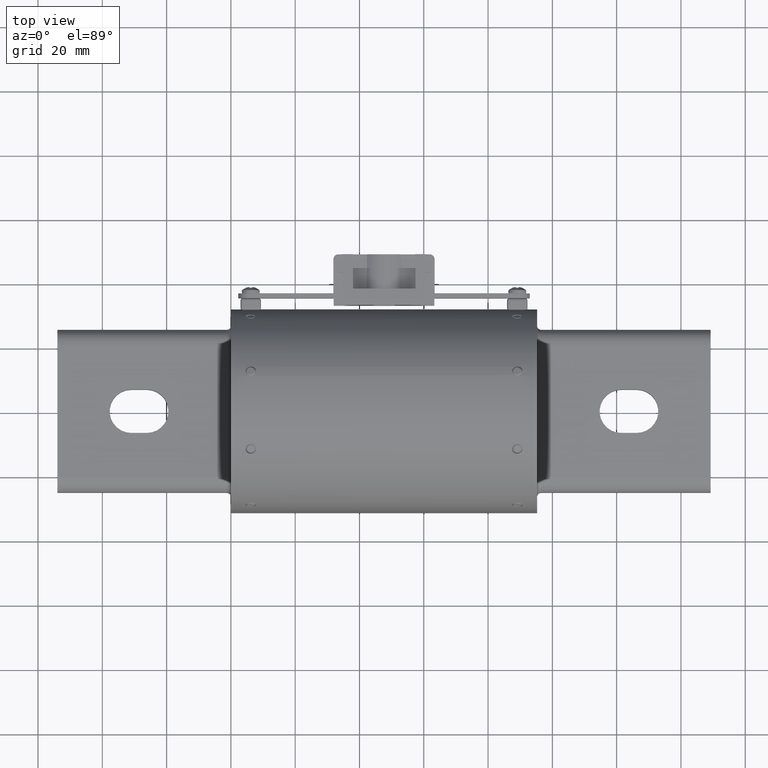
[diagram: clean part render]
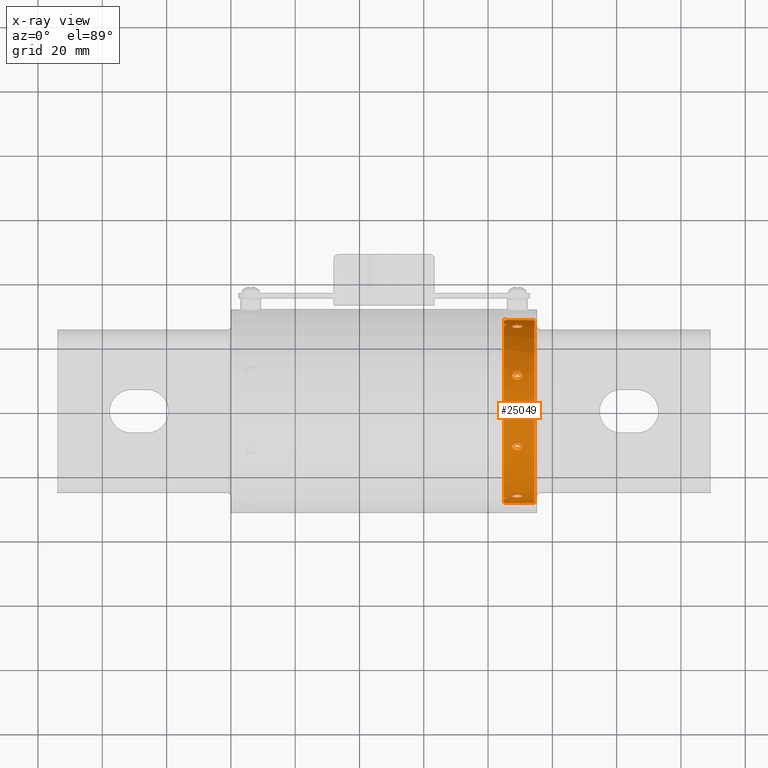
[diagram: x-ray — body ghosted, one internal face saturated and labeled with its STEP entity id]
A machine part, top view, then the same camera in x-ray: the body is ghosted and one INTERNAL B-rep face — a face not visible from any outside direction — is saturated and labeled: STEP entity #25049.
In plain terms, the highlighted cylindrical surface (bore or boss wall) has radius 28.5369 mm, axis along (1, 0, -0).
Its self-contained STEP definition (entity closure, byte-faithful):
#124 = CARTESIAN_POINT ( 'NONE',  ( 3.538933890152487400, -0.3780859924706288500, 1.057976023356261200 ) ) ;
#198 = CARTESIAN_POINT ( 'NONE',  ( 3.570130744637820500, 0.4376802129042148800, 1.034748656506844700 ) ) ;
#253 = DIRECTION ( 'NONE',  ( 0.0000000000000000000, -1.000000000000000000, 0.0000000000000000000 ) ) ;
#283 = FACE_BOUND ( 'NONE', #53560, .T. ) ;
#568 = CARTESIAN_POINT ( 'NONE',  ( 3.562185924736811900, -0.4591410192108847900, 1.025404170118422900 ) ) ;
#576 = CARTESIAN_POINT ( 'NONE',  ( 3.507000000000000100, 1.011997275087258100, 0.4879690207542929400 ) ) ;
#714 = LINE ( 'NONE', #137690, #99062 ) ;
#729 = CARTESIAN_POINT ( 'NONE',  ( 3.445124254700535600, -1.031501727180094600, -0.4453256485310201400 ) ) ;
#1094 = AXIS2_PLACEMENT_3D ( 'NONE', #117004, #51979, #127886 ) ;
#1154 = CARTESIAN_POINT ( 'NONE',  ( 3.341999999999999600, -2.013075239704277900E-016, -6.169712846355143400E-014 ) ) ;
#1178 = CARTESIAN_POINT ( 'NONE',  ( 3.478813608424086800, -1.058492704347473000, -0.3766271349764672700 ) ) ;
#1654 = CARTESIAN_POINT ( 'NONE',  ( 3.567280512138974600, -1.045674119634019100, -0.4108925138497548400 ) ) ;
#2115 = CARTESIAN_POINT ( 'NONE',  ( 3.515398636585917600, -1.011997275087308500, -0.4879690207543140900 ) ) ;
#2823 = ORIENTED_EDGE ( 'NONE', *, *, #41876, .T. ) ;
#3029 = CARTESIAN_POINT ( 'NONE',  ( 3.445124254700535200, -0.4144890801821029500, -1.044274652007296300 ) ) ;
#3275 = CARTESIAN_POINT ( 'NONE',  ( 3.464989712413194300, 0.4737761002720601300, -1.018723250887035900 ) ) ;
#3400 = VERTEX_POINT ( 'NONE', #22996 ) ;
#3491 = CARTESIAN_POINT ( 'NONE',  ( 3.478813608424085900, -0.4821517679598689200, -1.014782970201343300 ) ) ;
#3661 = VERTEX_POINT ( 'NONE', #49646 ) ;
#3726 = CARTESIAN_POINT ( 'NONE',  ( 3.465006043216689600, 0.3853183110074838200, -1.055362908834385400 ) ) ;
#3881 = EDGE_CURVE ( 'NONE', #53114, #137507, #88645, .T. ) ;
#3928 = CARTESIAN_POINT ( 'NONE',  ( 3.567280512138975500, -0.4488583780225431900, -1.029948143786472100 ) ) ;
#4181 = CARTESIAN_POINT ( 'NONE',  ( 3.557510918191218300, 0.3938550066222547000, -1.052208356780799200 ) ) ;
#4255 = DIRECTION ( 'NONE',  ( -1.000000000000000000, -6.718675002655119100E-017, 1.023891520009880200E-016 ) ) ;
#4402 = CARTESIAN_POINT ( 'NONE',  ( 3.515398636585915300, -0.3705439321722116500, -1.060636339340910800 ) ) ;
#4647 = EDGE_CURVE ( 'NONE', #101786, #131056, #66209, .T. ) ;
#4662 = CARTESIAN_POINT ( 'NONE',  ( 3.546112164216570500, 0.4764172399858244700, -1.017503498640856400 ) ) ;
#4813 = LINE ( 'NONE', #90048, #116822 ) ;
#5136 = CARTESIAN_POINT ( 'NONE',  ( 3.341999999999997900, -2.013075239704280900E-016, -6.169712846355143400E-014 ) ) ;
#5363 = VERTEX_POINT ( 'NONE', #79169 ) ;
#5579 = CARTESIAN_POINT ( 'NONE',  ( 3.502800681707041600, 1.011997275087257900, 0.4879690207542929400 ) ) ;
#5742 = EDGE_CURVE ( 'NONE', #85133, #95730, #50244, .T. ) ;
#6047 = DIRECTION ( 'NONE',  ( 0.0000000000000000000, -1.000000000000000000, 0.0000000000000000000 ) ) ;
#6048 = CARTESIAN_POINT ( 'NONE',  ( 3.443860352378937500, 1.041141677913381300, 0.4222474021840023600 ) ) ;
#6248 = CARTESIAN_POINT ( 'NONE',  ( 3.312000000000000300, -2.033231264712243800E-016, -6.169405678899142900E-014 ) ) ;
#6260 = LINE ( 'NONE', #63895, #92765 ) ;
#6278 = CARTESIAN_POINT ( 'NONE',  ( 3.445124254700534700, 1.044274652007265400, -0.4144890801820863600 ) ) ;
#6405 = LINE ( 'NONE', #77883, #89517 ) ;
#6536 = CARTESIAN_POINT ( 'NONE',  ( 3.498617316963510900, 1.060498256524868000, 0.3709398361550404500 ) ) ;
#6672 = CIRCLE ( 'NONE', #19122, 1.123499999999999900 ) ;
#6769 = CARTESIAN_POINT ( 'NONE',  ( 3.478813608424087300, 1.014782970201317400, -0.4821517679598543700 ) ) ;
#7013 = CARTESIAN_POINT ( 'NONE',  ( 3.570545773309508100, 1.039607306907323100, 0.4260122974539519200 ) ) ;
#7231 = CARTESIAN_POINT ( 'NONE',  ( 3.567280512138973700, 1.029948143786443900, -0.4488583780225275900 ) ) ;
#7355 = LINE ( 'NONE', #38040, #65064 ) ;
#7440 = DIRECTION ( 'NONE',  ( 1.000000000000000000, 6.718675002655119100E-017, -1.023891520009880200E-016 ) ) ;
#7697 = CARTESIAN_POINT ( 'NONE',  ( 3.515398636585915800, 1.060636339340875300, -0.3705439321721935600 ) ) ;
#8346 = CARTESIAN_POINT ( 'NONE',  ( 3.507000000000000600, -1.060636339340836200, 0.3705439321721851800 ) ) ;
#8830 = CARTESIAN_POINT ( 'NONE',  ( 3.443860352378938000, -1.034772342051205600, 0.4376243392057746500 ) ) ;
#9076 = ORIENTED_EDGE ( 'NONE', *, *, #112728, .T. ) ;
#9201 = CARTESIAN_POINT ( 'NONE',  ( 3.502800681707041200, 0.3705439321721742400, 1.060636339340799400 ) ) ;
#9240 = EDGE_CURVE ( 'NONE', #79636, #63903, #43109, .T. ) ;
#9263 = CARTESIAN_POINT ( 'NONE',  ( 3.498617316963510400, -1.012179582182697800, 0.4875914350677806900 ) ) ;
#9341 = CARTESIAN_POINT ( 'NONE',  ( 3.312000000000000300, -1.067098870770651700, 0.3514999999999382500 ) ) ;
#9670 = CARTESIAN_POINT ( 'NONE',  ( 3.498671704664812100, 0.3709337140410062200, 1.060500393019303800 ) ) ;
#9730 = CARTESIAN_POINT ( 'NONE',  ( 3.570545773309506700, -1.036349560883804500, 0.4338771920866966700 ) ) ;
#9903 = ORIENTED_EDGE ( 'NONE', *, *, #126633, .F. ) ;
#10058 = CARTESIAN_POINT ( 'NONE',  ( 3.468259527513521100, -0.4762099404755517600, 1.017586198434734300 ) ) ;
#10144 = CARTESIAN_POINT ( 'NONE',  ( 3.445481639365505000, 0.4451205531266922400, 1.031569946888499800 ) ) ;
#10450 = DIRECTION ( 'NONE',  ( 0.0000000000000000000, -1.000000000000000000, 0.0000000000000000000 ) ) ;
#10460 = ORIENTED_EDGE ( 'NONE', *, *, #5742, .T. ) ;
#10519 = CARTESIAN_POINT ( 'NONE',  ( 3.459076836950700300, -0.3908924028818050500, 1.053311064932892700 ) ) ;
#10602 = CARTESIAN_POINT ( 'NONE',  ( 3.502829609732191600, 0.4879676775122326300, 1.011997922777218000 ) ) ;
#10647 = CARTESIAN_POINT ( 'NONE',  ( 3.341999999999999600, -2.013075239704277900E-016, -6.169712846355143400E-014 ) ) ;
#10691 = VERTEX_POINT ( 'NONE', #54808 ) ;
#10993 = CARTESIAN_POINT ( 'NONE',  ( 3.554825497809417800, -0.3907927216730329700, 1.053347937870924100 ) ) ;
#11070 = CARTESIAN_POINT ( 'NONE',  ( 3.570558357964457300, 0.4222563447484242700, 1.041163843949715700 ) ) ;
#11150 = CARTESIAN_POINT ( 'NONE',  ( 3.507000000000001000, -1.011997275087308100, -0.4879690207543140300 ) ) ;
#11307 = VECTOR ( 'NONE', #50868, 39.37007874015748100 ) ;
#11468 = CARTESIAN_POINT ( 'NONE',  ( 3.554902444777622500, -0.4684179153135313900, 1.021198087145041200 ) ) ;
#11624 = CARTESIAN_POINT ( 'NONE',  ( 3.443447787477609300, -1.039552099363065600, -0.4261465320336750300 ) ) ;
#12079 = DIRECTION ( 'NONE',  ( 0.0000000000000000000, -1.000000000000000000, 1.776356839400250500E-014 ) ) ;
#12108 = CARTESIAN_POINT ( 'NONE',  ( 3.490474287082780100, -1.059959007490082600, -0.3724779410646298400 ) ) ;
#12565 = CARTESIAN_POINT ( 'NONE',  ( 3.570130744637820100, -1.041164438375476300, -0.4221911453039460800 ) ) ;
#12945 = ORIENTED_EDGE ( 'NONE', *, *, #28093, .T. ) ;
#13031 = ORIENTED_EDGE ( 'NONE', *, *, #56421, .T. ) ;
#13374 = VERTEX_POINT ( 'NONE', #18171 ) ;
#13508 = CARTESIAN_POINT ( 'NONE',  ( 3.506999999999999700, -0.3705439321722117700, -1.060636339340910400 ) ) ;
#13680 = CARTESIAN_POINT ( 'NONE',  ( 3.370000000000000600, -1.118905715420204700, 0.1014999999999382200 ) ) ;
#13711 = DIRECTION ( 'NONE',  ( 1.000000000000000000, 6.718675002655119100E-017, -1.023891520009880200E-016 ) ) ;
#13745 = CARTESIAN_POINT ( 'NONE',  ( 3.369999999999999700, 1.067098870770651500, 0.3514999999999382500 ) ) ;
#13943 = CARTESIAN_POINT ( 'NONE',  ( 3.443447787477609700, -0.4337432362761974900, -1.036405441436512000 ) ) ;
#14122 = CARTESIAN_POINT ( 'NONE',  ( 3.370000000000000600, -1.994262949696842900E-016, -6.169999535980749800E-014 ) ) ;
#14172 = VERTEX_POINT ( 'NONE', #72818 ) ;
#14200 = CARTESIAN_POINT ( 'NONE',  ( 3.451463584181008400, 0.4593277463716344800, -1.025343243908262100 ) ) ;
#14337 = CARTESIAN_POINT ( 'NONE',  ( 3.369999999999999700, 1.113642671596234900, 0.1484999999999382400 ) ) ;
#14410 = CARTESIAN_POINT ( 'NONE',  ( 3.490474287082780100, -0.4861225240068013900, -1.012885879945238900 ) ) ;
#14664 = CARTESIAN_POINT ( 'NONE',  ( 3.475100278259846600, 0.3785043543209995500, -1.057824188678174100 ) ) ;
#14875 = CARTESIAN_POINT ( 'NONE',  ( 3.570130744637820100, -0.4376802129042517400, -1.034748656506953000 ) ) ;
#15115 = CARTESIAN_POINT ( 'NONE',  ( 3.564086464560446200, 0.4037284856316468200, -1.048460935037547100 ) ) ;
#15583 = CARTESIAN_POINT ( 'NONE',  ( 3.523742135114874800, 0.4864467643023890900, -1.012734868241144300 ) ) ;
#16041 = DIRECTION ( 'NONE',  ( 0.0000000000000000000, -1.000000000000000000, 8.881784197001245400E-016 ) ) ;
#16506 = CARTESIAN_POINT ( 'NONE',  ( 3.490548628223676600, 1.012877562579337800, 0.4861398430799129300 ) ) ;
#16717 = CARTESIAN_POINT ( 'NONE',  ( 3.507000000000000600, 1.060636339340875800, -0.3705439321721936100 ) ) ;
#16973 = CARTESIAN_POINT ( 'NONE',  ( 3.446681240676625600, 1.045633120962374600, 0.4109968813290756400 ) ) ;
#17122 = AXIS2_PLACEMENT_3D ( 'NONE', #6248, #126183, #104856 ) ;
#17192 = CARTESIAN_POINT ( 'NONE',  ( 3.443447787477609300, 1.036405441436482300, -0.4337432362761809400 ) ) ;
#17215 = ORIENTED_EDGE ( 'NONE', *, *, #124518, .F. ) ;
#17233 = CARTESIAN_POINT ( 'NONE',  ( 3.341999999999999600, 1.113642671596234600, 0.1484999999999382400 ) ) ;
#17413 = CARTESIAN_POINT ( 'NONE',  ( 3.515272531201082200, 1.060637318964658500, 0.3705411281197561500 ) ) ;
#17626 = CARTESIAN_POINT ( 'NONE',  ( 3.490474287082779200, 1.012885879945213400, -0.4861225240067867900 ) ) ;
#17867 = CARTESIAN_POINT ( 'NONE',  ( 3.568914994152521600, 1.031547703078980100, 0.4452201812200558000 ) ) ;
#18075 = CIRCLE ( 'NONE', #110356, 1.123499999999999900 ) ;
#18101 = CARTESIAN_POINT ( 'NONE',  ( 3.570130744637820500, 1.034748656506923000, -0.4376802129042358700 ) ) ;
#18171 = CARTESIAN_POINT ( 'NONE',  ( 3.341999999999997900, 1.118905715420204400, 0.1014999999999382200 ) ) ;
#18809 = EDGE_CURVE ( 'NONE', #77737, #77737, #27238, .T. ) ;
#18907 = ORIENTED_EDGE ( 'NONE', *, *, #93701, .T. ) ;
#19122 = AXIS2_PLACEMENT_3D ( 'NONE', #135849, #71010, #6047 ) ;
#19176 = CARTESIAN_POINT ( 'NONE',  ( 3.490548628223677500, -1.059965372658330000, 0.3724598133647776300 ) ) ;
#19319 = CIRCLE ( 'NONE', #133550, 1.123499999999999900 ) ;
#19656 = CARTESIAN_POINT ( 'NONE',  ( 3.446681240676625600, -1.029992952300061700, 0.4487555886314303900 ) ) ;
#20015 = EDGE_CURVE ( 'NONE', #63903, #101786, #21039, .T. ) ;
#20150 = CARTESIAN_POINT ( 'NONE',  ( 3.515272531201081700, -1.011995985021419500, 0.4879716962174283100 ) ) ;
#20457 = CARTESIAN_POINT ( 'NONE',  ( 3.502800681707043400, -0.4879690207542858900, 1.011997275087229900 ) ) ;
#20549 = CARTESIAN_POINT ( 'NONE',  ( 3.486512396113935700, 0.3736146883634327000, 1.059559750911943400 ) ) ;
#20628 = CARTESIAN_POINT ( 'NONE',  ( 3.568914994152524200, -1.044232585226364100, 0.4145961667027441300 ) ) ;
#20930 = CARTESIAN_POINT ( 'NONE',  ( 3.456198068224821500, -0.4657868486416924000, 1.022413459408287700 ) ) ;
#21015 = CARTESIAN_POINT ( 'NONE',  ( 3.449862901852390100, 0.4558011675427998100, 1.026894520280582400 ) ) ;
#21039 = CIRCLE ( 'NONE', #116443, 1.123499999999999900 ) ;
#21054 = EDGE_CURVE ( 'NONE', #88555, #130035, #52329, .T. ) ;
#21384 = CARTESIAN_POINT ( 'NONE',  ( 3.468219715082657000, -0.3828405916234842700, 1.056262581841141500 ) ) ;
#21475 = CARTESIAN_POINT ( 'NONE',  ( 3.523634073543618200, 0.4864730878028527500, 1.012722182310031200 ) ) ;
#21522 = DIRECTION ( 'NONE',  ( 0.0000000000000000000, -1.000000000000000000, 0.0000000000000000000 ) ) ;
#21853 = CARTESIAN_POINT ( 'NONE',  ( 3.562131990603966800, -0.4003204544115813700, 1.049765557684291900 ) ) ;
#21940 = CARTESIAN_POINT ( 'NONE',  ( 3.564135572610033900, 0.4038202171233358800, 1.048425647395002700 ) ) ;
#22009 = CARTESIAN_POINT ( 'NONE',  ( 3.498671704664813900, -1.012176763924135500, -0.4875972747858722300 ) ) ;
#22263 = FACE_OUTER_BOUND ( 'NONE', #78372, .T. ) ;
#22308 = CARTESIAN_POINT ( 'NONE',  ( 3.539030487377321100, -0.4807044950438531000, 1.015473070197362400 ) ) ;
#22313 = CARTESIAN_POINT ( 'NONE',  ( 3.719999999999998400, -1.123499999999999900, -6.173583156300779100E-014 ) ) ;
#22370 = EDGE_CURVE ( 'NONE', #3400, #81115, #48215, .T. ) ;
#22460 = CARTESIAN_POINT ( 'NONE',  ( 3.445481639365503200, -1.044177866274570200, -0.4146823431517423500 ) ) ;
#22529 = VECTOR ( 'NONE', #127969, 39.37007874015748100 ) ;
#22633 = ORIENTED_EDGE ( 'NONE', *, *, #126190, .T. ) ;
#22911 = CARTESIAN_POINT ( 'NONE',  ( 3.502829609732190300, -1.060635847511291800, -0.3705453399737484400 ) ) ;
#22996 = CARTESIAN_POINT ( 'NONE',  ( 3.370000000000000600, -1.050452283542665300, -0.3985000000000616900 ) ) ;
#23316 = CARTESIAN_POINT ( 'NONE',  ( 3.341999999999997900, 1.118905715420204400, -0.1015000000000617800 ) ) ;
#23369 = CARTESIAN_POINT ( 'NONE',  ( 3.570558357964456900, -1.034794339153827700, -0.4376336896124702300 ) ) ;
#24108 = ORIENTED_EDGE ( 'NONE', *, *, #128500, .T. ) ;
#24294 = CARTESIAN_POINT ( 'NONE',  ( 3.498671704664812100, -0.3709337140410436900, -1.060500393019413900 ) ) ;
#24537 = CARTESIAN_POINT ( 'NONE',  ( 3.502800681707043400, 0.4879690207543353500, -1.011997275087329000 ) ) ;
#24748 = CARTESIAN_POINT ( 'NONE',  ( 3.445481639365504600, -0.4451205531267283800, -1.031569946888607500 ) ) ;
#24933 = DIRECTION ( 'NONE',  ( 0.0000000000000000000, -1.000000000000000000, 0.0000000000000000000 ) ) ;
#24945 = LINE ( 'NONE', #121598, #75925 ) ;
#25017 = CARTESIAN_POINT ( 'NONE',  ( 3.443454452424636000, 0.4376358425453956700, -1.034792663067069200 ) ) ;
#25036 = DIRECTION ( 'NONE',  ( 1.000000000000000000, 6.718675002655119100E-017, -1.023891520009880200E-016 ) ) ;
#25049 = ADVANCED_FACE ( 'NONE', ( #54513, #283, #29034, #125785, #25601, #137533, #108812, #79911, #51061, #22263 ), #91775, .T. ) ;
#25127 = CARTESIAN_POINT ( 'NONE',  ( 3.341999999999997900, -1.050452283542665100, 0.3984999999999383500 ) ) ;
#25232 = CARTESIAN_POINT ( 'NONE',  ( 3.502829609732190300, -0.4879676775122682700, -1.011997922777324800 ) ) ;
#25473 = CARTESIAN_POINT ( 'NONE',  ( 3.486513073892843400, 0.3736143337327474400, -1.059559877301385900 ) ) ;
#25601 = FACE_BOUND ( 'NONE', #48611, .T. ) ;
#25669 = CARTESIAN_POINT ( 'NONE',  ( 3.570558357964458600, -0.4222563447484615200, -1.041163843949824800 ) ) ;
#25937 = CARTESIAN_POINT ( 'NONE',  ( 3.568508523543626200, 0.4146513285979227500, -1.044190129527584400 ) ) ;
#26822 = DIRECTION ( 'NONE',  ( -1.000000000000000000, -6.718675002655119100E-017, 1.023891520009880200E-016 ) ) ;
#27002 = CIRCLE ( 'NONE', #95719, 1.123499999999999900 ) ;
#27238 = B_SPLINE_CURVE_WITH_KNOTS ( 'NONE', 3,
 ( #118121, #20457, #53155, #129035, #64090, #139892, #75016, #10058, #85921, #20930, #96800, #31817, #107686, #42723, #118611, #53623, #129488, #64576, #140361, #75479, #10519, #86398, #21384, #97276, #32308, #108152, #43188, #119098, #54095, #129931, #65041, #124, #75948, #10993, #86861, #21853, #97741, #32766, #108628, #43646, #119551, #54552, #130406, #65499, #568, #76421, #11468, #87323, #22308, #98223, #33217, #109110 ),
 .UNSPECIFIED., .T., .F.,
 ( 4, 2, 2, 2, 2, 2, 2, 2, 2, 2, 2, 2, 2, 2, 2, 2, 2, 2, 2, 2, 2, 2, 2, 2, 2, 4 ),
 ( 0.0000000000000000000, 0.0003154413810537323100, 0.0006308827621074646300, 0.0009463241431611970000, 0.001261765524214929300, 0.001892648286322397000, 0.002523531048429865000, 0.002838972429483599700, 0.003154413810537334300, 0.003469855191591068500, 0.003785296572644803200, 0.004100737953698537800, 0.004416179334752272900, 0.004731620715806007100, 0.005047062096859741300, 0.005677944858967210600, 0.006308827621074679900, 0.006624269002128412400, 0.006939710383182144000, 0.007255151764235876500, 0.007570593145289608900, 0.008201475907397070400, 0.008516917288450802000, 0.008832358669504533600, 0.009463241431611991600, 0.01009412419371945000 ),
 .UNSPECIFIED. ) ;
#27350 = CARTESIAN_POINT ( 'NONE',  ( 3.478816760197438000, 1.014782366761440200, 0.4821530350662592300 ) ) ;
#27587 = CARTESIAN_POINT ( 'NONE',  ( 3.498671704664812600, 1.060500393019379500, -0.3709337140410253800 ) ) ;
#27837 = CARTESIAN_POINT ( 'NONE',  ( 3.451852284500487800, 1.049755125058516200, 0.4003477174893994000 ) ) ;
#28058 = CARTESIAN_POINT ( 'NONE',  ( 3.445481639365504600, 1.031569946888579300, -0.4451205531267125600 ) ) ;
#28093 = EDGE_CURVE ( 'NONE', #110612, #80024, #74398, .T. ) ;
#28301 = CARTESIAN_POINT ( 'NONE',  ( 3.538933890152486500, 1.057976023356296900, 0.3780859924706390100 ) ) ;
#28365 = CARTESIAN_POINT ( 'NONE',  ( 3.507000000000000600, 0.4879690207543354600, -1.011997275087329400 ) ) ;
#28455 = DIRECTION ( 'NONE',  ( -1.000000000000000000, -6.718675002655119100E-017, 1.023891520009880200E-016 ) ) ;
#28530 = CARTESIAN_POINT ( 'NONE',  ( 3.502829609732190300, 1.011997922777299300, -0.4879676775122537800 ) ) ;
#28767 = CARTESIAN_POINT ( 'NONE',  ( 3.562185924736814600, 1.025404170118454400, 0.4591410192108928400 ) ) ;
#28982 = CARTESIAN_POINT ( 'NONE',  ( 3.570558357964458600, 1.041163843949793900, -0.4222563447484450300 ) ) ;
#29034 = FACE_BOUND ( 'NONE', #60842, .T. ) ;
#29542 = CIRCLE ( 'NONE', #34107, 1.123499999999999900 ) ;
#29690 = CARTESIAN_POINT ( 'NONE',  ( 3.312000000000000300, -1.118905715420204700, -0.1015000000000616800 ) ) ;
#30086 = CARTESIAN_POINT ( 'NONE',  ( 3.478816760197437100, -1.058493173630583600, 0.3766258123005177800 ) ) ;
#30410 = B_SPLINE_CURVE_WITH_KNOTS ( 'NONE', 3,
 ( #139496, #9201, #9670, #85550, #20549, #96396, #31426, #107307, #42338, #118221, #53248, #129121, #64180, #139970, #75102, #10144, #86014, #21015, #96888, #31908, #107770, #42810, #118697, #53718, #129572, #64658, #140449, #75557, #10602, #86469, #21475, #97367, #32391, #108232, #43266, #119179, #54176, #130021, #65131, #198, #76031, #11070, #86952, #21940, #97834, #32847, #108726, #43722, #119635, #54645, #130493, #65586 ),
 .UNSPECIFIED., .T., .F.,
 ( 4, 2, 2, 2, 2, 2, 2, 2, 2, 2, 2, 2, 2, 2, 2, 2, 2, 2, 2, 2, 2, 2, 2, 2, 2, 4 ),
 ( 0.0000000000000000000, 0.0003154413810537411500, 0.0006308827621074823000, 0.0009463241431612234500, 0.001261765524214964600, 0.001892648286322446900, 0.002523531048429929200, 0.002838972429483666000, 0.003154413810537402000, 0.003469855191591138800, 0.003785296572644875200, 0.004100737953698612400, 0.004416179334752349200, 0.004731620715806085200, 0.005047062096859822000, 0.005677944858967295600, 0.006308827621074768400, 0.006624269002128489600, 0.006939710383182210800, 0.007255151764235932000, 0.007570593145289652300, 0.008201475907397089500, 0.008516917288450814200, 0.008832358669504538800, 0.009463241431611986400, 0.01009412419371943600 ),
 .UNSPECIFIED. ) ;
#30584 = CARTESIAN_POINT ( 'NONE',  ( 3.451852284500490000, -1.025377553383519200, 0.4592003816448916300 ) ) ;
#30948 = ORIENTED_EDGE ( 'NONE', *, *, #22370, .F. ) ;
#31023 = CARTESIAN_POINT ( 'NONE',  ( 3.538933890152486900, -1.015449189595647200, 0.4807548513003718200 ) ) ;
#31426 = CARTESIAN_POINT ( 'NONE',  ( 3.475166950142255700, 0.3784670874084169500, 1.057837531193314600 ) ) ;
#31436 = CIRCLE ( 'NONE', #1094, 1.123499999999999900 ) ;
#31495 = CARTESIAN_POINT ( 'NONE',  ( 3.562185924736812800, -1.049731970352653500, 0.4004085139427934800 ) ) ;
#31817 = CARTESIAN_POINT ( 'NONE',  ( 3.445124254700535600, -0.4453256485309925500, 1.031501727180018000 ) ) ;
#31826 = CARTESIAN_POINT ( 'NONE',  ( 3.507000000000000100, -0.4879690207542858300, 1.011997275087229900 ) ) ;
#31908 = CARTESIAN_POINT ( 'NONE',  ( 3.456451315047572900, 0.4654797972617243400, 1.022542261144594900 ) ) ;
#32163 = CARTESIAN_POINT ( 'NONE',  ( 3.312000000000000300, -1.050452283542665100, 0.3984999999999383500 ) ) ;
#32308 = CARTESIAN_POINT ( 'NONE',  ( 3.478813608424086400, -0.3766271349764407400, 1.058492704347398800 ) ) ;
#32391 = CARTESIAN_POINT ( 'NONE',  ( 3.546028266499309000, 0.4764745084842428900, 1.017476589845325300 ) ) ;
#32766 = CARTESIAN_POINT ( 'NONE',  ( 3.567280512138974600, -0.4108925138497278000, 1.045674119633943600 ) ) ;
#32847 = CARTESIAN_POINT ( 'NONE',  ( 3.557583675420764400, 0.3939445455330616300, 1.052174834646319600 ) ) ;
#32921 = CARTESIAN_POINT ( 'NONE',  ( 3.486512396113935700, -1.013407364634925800, -0.4850364052495135200 ) ) ;
#33217 = CARTESIAN_POINT ( 'NONE',  ( 3.515398636585915300, -0.4879690207542858900, 1.011997275087230400 ) ) ;
#33374 = CARTESIAN_POINT ( 'NONE',  ( 3.449862901852391400, -1.048424175296039700, -0.4038239824114753800 ) ) ;
#33856 = CARTESIAN_POINT ( 'NONE',  ( 3.523634073543618200, -1.060091141819688600, -0.3721143033193339300 ) ) ;
#34107 = AXIS2_PLACEMENT_3D ( 'NONE', #5136, #80967, #16041 ) ;
#34210 = EDGE_CURVE ( 'NONE', #118444, #118444, #70143, .T. ) ;
#34296 = CARTESIAN_POINT ( 'NONE',  ( 3.564135572610033900, -1.026892898751114600, -0.4558048709347978800 ) ) ;
#34794 = DIRECTION ( 'NONE',  ( 1.000000000000000000, 6.718675002655119100E-017, -1.023891520009880200E-016 ) ) ;
#35110 = VERTEX_POINT ( 'NONE', #35524 ) ;
#35119 = CARTESIAN_POINT ( 'NONE',  ( 3.370000000000000600, -1.050452283542665300, 0.3984999999999383500 ) ) ;
#35121 = ORIENTED_EDGE ( 'NONE', *, *, #64122, .F. ) ;
#35211 = CARTESIAN_POINT ( 'NONE',  ( 3.486512396113935700, -0.3736146883634699500, -1.059559750912053800 ) ) ;
#35524 = CARTESIAN_POINT ( 'NONE',  ( 3.507000000000000100, -0.3705439321722118800, -1.060636339340910400 ) ) ;
#35659 = CARTESIAN_POINT ( 'NONE',  ( 3.449862901852391900, -0.4558011675428357300, -1.026894520280690300 ) ) ;
#35864 = CARTESIAN_POINT ( 'NONE',  ( 3.370000000000000600, -1.113642671596235100, 0.1484999999999382400 ) ) ;
#35905 = CARTESIAN_POINT ( 'NONE',  ( 3.443860352378937500, 0.4222474021840444400, -1.041141677913450800 ) ) ;
#35972 = CARTESIAN_POINT ( 'NONE',  ( 3.312000000000000300, 1.050452283542664800, 0.3984999999999383500 ) ) ;
#36106 = CARTESIAN_POINT ( 'NONE',  ( 3.523634073543617800, -0.4864730878028882800, -1.012722182310137300 ) ) ;
#36378 = CARTESIAN_POINT ( 'NONE',  ( 3.498617316963510400, 0.3709398361550819100, -1.060498256524936600 ) ) ;
#36436 = EDGE_CURVE ( 'NONE', #86239, #86239, #130001, .T. ) ;
#36441 = CARTESIAN_POINT ( 'NONE',  ( 3.507000000000000100, -1.011997275087307900, -0.4879690207543140300 ) ) ;
#36582 = CARTESIAN_POINT ( 'NONE',  ( 3.564135572610035200, -0.4038202171233729600, -1.048425647395111900 ) ) ;
#36827 = CARTESIAN_POINT ( 'NONE',  ( 3.570545773309508100, 0.4260122974539938300, -1.039607306907392800 ) ) ;
#36937 = LINE ( 'NONE', #130640, #94681 ) ;
#36960 = CARTESIAN_POINT ( 'NONE',  ( 3.369999999999999700, 1.113642671596234900, -0.1485000000000617800 ) ) ;
#37083 = ORIENTED_EDGE ( 'NONE', *, *, #101362, .T. ) ;
#37284 = VECTOR ( 'NONE', #101083, 39.37007874015748100 ) ;
#37419 = ORIENTED_EDGE ( 'NONE', *, *, #18809, .T. ) ;
#37536 = EDGE_LOOP ( 'NONE', ( #22633 ) ) ;
#37626 = DIRECTION ( 'NONE',  ( -1.000000000000000000, -6.718675002655119100E-017, 1.023891520009880200E-016 ) ) ;
#37958 = EDGE_CURVE ( 'NONE', #111633, #111633, #46449, .T. ) ;
#38040 = CARTESIAN_POINT ( 'NONE',  ( 3.312000000000000300, 1.067098870770651500, 0.3514999999999382500 ) ) ;
#38234 = CARTESIAN_POINT ( 'NONE',  ( 3.468259527513523300, 1.017586198434763400, 0.4762099404755597000 ) ) ;
#38466 = CARTESIAN_POINT ( 'NONE',  ( 3.486512396113934400, 1.059559750912020000, -0.3736146883634521900 ) ) ;
#38708 = CARTESIAN_POINT ( 'NONE',  ( 3.459076836950700300, 1.053311064932926900, 0.3908924028818149300 ) ) ;
#38952 = CARTESIAN_POINT ( 'NONE',  ( 3.449862901852391400, 1.026894520280662300, -0.4558011675428202400 ) ) ;
#39192 = CARTESIAN_POINT ( 'NONE',  ( 3.554825497809417800, 1.053347937870958500, 0.3907927216730429600 ) ) ;
#39205 = CARTESIAN_POINT ( 'NONE',  ( 3.370000000000000600, -1.067098870770651900, -0.3515000000000616000 ) ) ;
#39404 = CARTESIAN_POINT ( 'NONE',  ( 3.523634073543617800, 1.012722182310112000, -0.4864730878028739600 ) ) ;
#39619 = DIRECTION ( 'NONE',  ( -1.000000000000000000, -6.718675002655119100E-017, 1.023891520009880200E-016 ) ) ;
#39647 = CARTESIAN_POINT ( 'NONE',  ( 3.554902444777621600, 1.021198087145071000, 0.4684179153135391600 ) ) ;
#39674 = VECTOR ( 'NONE', #74304, 39.37007874015748100 ) ;
#39880 = CARTESIAN_POINT ( 'NONE',  ( 3.564135572610033400, 1.048425647395080600, -0.4038202171233559200 ) ) ;
#40047 = LINE ( 'NONE', #82689, #11307 ) ;
#40121 = VERTEX_POINT ( 'NONE', #106953 ) ;
#40988 = CARTESIAN_POINT ( 'NONE',  ( 3.468259527513523300, -1.056273379533779100, 0.3828108231763470700 ) ) ;
#41458 = CARTESIAN_POINT ( 'NONE',  ( 3.459076836950699500, -1.021206065504931300, 0.4684007279208541900 ) ) ;
#41876 = EDGE_CURVE ( 'NONE', #53114, #105658, #123913, .T. ) ;
#41929 = CARTESIAN_POINT ( 'NONE',  ( 3.554825497809417800, -1.021161653350775900, 0.4684972862840582900 ) ) ;
#42171 = EDGE_LOOP ( 'NONE', ( #67434 ) ) ;
#42338 = CARTESIAN_POINT ( 'NONE',  ( 3.464989712413195200, 0.3853358255881021400, 1.055356412121010400 ) ) ;
#42418 = CARTESIAN_POINT ( 'NONE',  ( 3.554902444777622500, -1.053317576702486500, 0.3908746080075372600 ) ) ;
#42723 = CARTESIAN_POINT ( 'NONE',  ( 3.443447787477609300, -0.4261465320336476600, 1.039552099362989900 ) ) ;
#42810 = CARTESIAN_POINT ( 'NONE',  ( 3.465006043216689600, 0.4737930788207804200, 1.018715460078183100 ) ) ;
#43109 = LINE ( 'NONE', #9341, #39674 ) ;
#43188 = CARTESIAN_POINT ( 'NONE',  ( 3.490474287082779600, -0.3724779410646027500, 1.059959007490008000 ) ) ;
#43266 = CARTESIAN_POINT ( 'NONE',  ( 3.557510918191218300, 0.4655261183139531900, 1.022521210287616200 ) ) ;
#43646 = CARTESIAN_POINT ( 'NONE',  ( 3.570130744637821000, -0.4221911453039188200, 1.041164438375401300 ) ) ;
#43655 = EDGE_CURVE ( 'NONE', #136953, #136953, #139983, .T. ) ;
#43722 = CARTESIAN_POINT ( 'NONE',  ( 3.546112164216570900, 0.3826057627017964700, 1.056361484838033200 ) ) ;
#43798 = CARTESIAN_POINT ( 'NONE',  ( 3.475166950142256200, -1.015620735662921700, -0.4803874477380464800 ) ) ;
#44087 = CARTESIAN_POINT ( 'NONE',  ( 3.370000000000000600, -1.994262949696842900E-016, -6.169999535980749800E-014 ) ) ;
#44117 = EDGE_CURVE ( 'NONE', #121570, #3661, #19319, .T. ) ;
#44272 = CARTESIAN_POINT ( 'NONE',  ( 3.456451315047572900, -1.052190488054345800, -0.3939026457560920200 ) ) ;
#44358 = VERTEX_POINT ( 'NONE', #112944 ) ;
#44453 = CARTESIAN_POINT ( 'NONE',  ( 3.341999999999997900, -2.013075239704280900E-016, -6.169712846355143400E-014 ) ) ;
#44708 = AXIS2_PLACEMENT_3D ( 'NONE', #14122, #89925, #24933 ) ;
#44720 = CARTESIAN_POINT ( 'NONE',  ( 3.546028266499307700, -1.056382952389999700, -0.3825462403664853200 ) ) ;
#45187 = CARTESIAN_POINT ( 'NONE',  ( 3.557583675420766600, -1.022560820130205400, -0.4654391010143966700 ) ) ;
#45331 = CARTESIAN_POINT ( 'NONE',  ( 3.719999999999998400, -1.759109324603914800E-016, -6.173583156300779100E-014 ) ) ;
#45457 = ORIENTED_EDGE ( 'NONE', *, *, #9240, .T. ) ;
#45600 = ORIENTED_EDGE ( 'NONE', *, *, #67895, .T. ) ;
#46092 = CARTESIAN_POINT ( 'NONE',  ( 3.475166950142255300, -0.3784670874084544200, -1.057837531193424900 ) ) ;
#46335 = CARTESIAN_POINT ( 'NONE',  ( 3.490548628223677100, 0.4861398430799552300, -1.012877562579408900 ) ) ;
#46449 = B_SPLINE_CURVE_WITH_KNOTS ( 'NONE', 3,
 ( #70537, #5579, #81415, #16506, #92321, #27350, #103228, #38234, #114173, #49156, #125025, #60044, #135851, #71012, #6048, #81881, #16973, #92785, #27837, #103714, #38708, #114659, #49610, #125520, #60518, #136323, #71486, #6536, #82351, #17413, #93265, #28301, #104189, #39192, #115123, #50084, #125974, #61011, #136785, #71961, #7013, #82828, #17867, #93728, #28767, #104654, #39647, #115603, #50564, #126456, #61466, #137270 ),
 .UNSPECIFIED., .T., .F.,
 ( 4, 2, 2, 2, 2, 2, 2, 2, 2, 2, 2, 2, 2, 2, 2, 2, 2, 2, 2, 2, 2, 2, 2, 2, 2, 4 ),
 ( 0.0000000000000000000, 0.0003154413810537324800, 0.0006308827621074649500, 0.0009463241431611975400, 0.001261765524214929900, 0.001892648286322391800, 0.002523531048429853700, 0.002838972429483582700, 0.003154413810537310900, 0.003469855191591039500, 0.003785296572644768000, 0.004100737953698497000, 0.004416179334752225200, 0.004731620715805953300, 0.005047062096859682300, 0.005677944858967140300, 0.006308827621074597500, 0.006624269002128329100, 0.006939710383182059800, 0.007255151764235791500, 0.007570593145289522200, 0.008201475907396987100, 0.008516917288450727400, 0.008832358669504467700, 0.009463241431611948300, 0.01009412419371942900 ),
 .UNSPECIFIED. ) ;
#46541 = CARTESIAN_POINT ( 'NONE',  ( 3.456451315047570200, -0.4654797972617598600, -1.022542261144701300 ) ) ;
#46803 = CARTESIAN_POINT ( 'NONE',  ( 3.446681240676626100, 0.4109968813291174400, -1.045633120962444800 ) ) ;
#47040 = CARTESIAN_POINT ( 'NONE',  ( 3.546028266499306400, -0.4764745084842784100, -1.017476589845431700 ) ) ;
#47294 = CARTESIAN_POINT ( 'NONE',  ( 3.515272531201080400, 0.3705411281197975000, -1.060637318964726700 ) ) ;
#47457 = CIRCLE ( 'NONE', #97309, 1.123499999999999900 ) ;
#47506 = CARTESIAN_POINT ( 'NONE',  ( 3.557583675420766100, -0.3939445455330992100, -1.052174834646428800 ) ) ;
#47744 = CARTESIAN_POINT ( 'NONE',  ( 3.568914994152519800, 0.4452201812200973800, -1.031547703079049600 ) ) ;
#47819 = CARTESIAN_POINT ( 'NONE',  ( 3.507000000000000100, 0.3705439321721743500, 1.060636339340799400 ) ) ;
#48215 = CIRCLE ( 'NONE', #122994, 1.123499999999999900 ) ;
#48611 = EDGE_LOOP ( 'NONE', ( #18907 ) ) ;
#48733 = EDGE_LOOP ( 'NONE', ( #132309 ) ) ;
#49156 = CARTESIAN_POINT ( 'NONE',  ( 3.456198068224821500, 1.022413459408318100, 0.4657868486417005000 ) ) ;
#49234 = ORIENTED_EDGE ( 'NONE', *, *, #60305, .T. ) ;
#49375 = CARTESIAN_POINT ( 'NONE',  ( 3.475166950142258000, 1.057837531193392300, -0.3784670874084366000 ) ) ;
#49610 = CARTESIAN_POINT ( 'NONE',  ( 3.468219715082655300, 1.056262581841176800, 0.3828405916234951000 ) ) ;
#49646 = CARTESIAN_POINT ( 'NONE',  ( 3.341999999999999600, 1.067098870770651500, 0.3514999999999382500 ) ) ;
#49845 = CARTESIAN_POINT ( 'NONE',  ( 3.456451315047570200, 1.022542261144675100, -0.4654797972617448800 ) ) ;
#50046 = CARTESIAN_POINT ( 'NONE',  ( 3.312000000000000300, -1.050452283542665100, -0.3985000000000616900 ) ) ;
#50084 = CARTESIAN_POINT ( 'NONE',  ( 3.562131990603967700, 1.049765557684325700, 0.4003204544115910300 ) ) ;
#50244 = LINE ( 'NONE', #32163, #133317 ) ;
#50317 = CARTESIAN_POINT ( 'NONE',  ( 3.546028266499304600, 1.017476589845405500, -0.4764745084842639800 ) ) ;
#50349 = VERTEX_POINT ( 'NONE', #68727 ) ;
#50564 = CARTESIAN_POINT ( 'NONE',  ( 3.539030487377321500, 1.015473070197390900, 0.4807044950438602600 ) ) ;
#50772 = CARTESIAN_POINT ( 'NONE',  ( 3.557583675420766600, 1.052174834646396800, -0.3939445455330816700 ) ) ;
#50868 = DIRECTION ( 'NONE',  ( 1.000000000000000000, 6.718675002655119100E-017, -1.023891520009880200E-016 ) ) ;
#51061 = FACE_OUTER_BOUND ( 'NONE', #101169, .T. ) ;
#51218 = DIRECTION ( 'NONE',  ( -1.000000000000000000, -6.718675002655119100E-017, 1.023891520009880200E-016 ) ) ;
#51586 = CARTESIAN_POINT ( 'NONE',  ( 3.312000000000000300, 1.118905715420204400, -0.1015000000000616800 ) ) ;
#51880 = CARTESIAN_POINT ( 'NONE',  ( 3.456198068224820600, -1.052316529586083000, 0.3935944510619559500 ) ) ;
#51979 = DIRECTION ( 'NONE',  ( 1.000000000000000000, 6.718675002655119100E-017, -1.023891520009880200E-016 ) ) ;
#52329 = CIRCLE ( 'NONE', #44708, 1.123499999999999900 ) ;
#52370 = CARTESIAN_POINT ( 'NONE',  ( 3.468219715082656100, -1.017599612783947900, 0.4761812558830562100 ) ) ;
#52433 = EDGE_LOOP ( 'NONE', ( #9076 ) ) ;
#52858 = CARTESIAN_POINT ( 'NONE',  ( 3.562131990603966300, -1.025365652456780900, 0.4592270365325418200 ) ) ;
#53114 = VERTEX_POINT ( 'NONE', #132069 ) ;
#53155 = CARTESIAN_POINT ( 'NONE',  ( 3.498671704664813000, -0.4875972747858438600, 1.012176763924057300 ) ) ;
#53248 = CARTESIAN_POINT ( 'NONE',  ( 3.451463584181008400, 0.4002333965647926200, 1.049820925057752600 ) ) ;
#53305 = CARTESIAN_POINT ( 'NONE',  ( 3.539030487377323300, -1.057957302241274500, 0.3781384858565258200 ) ) ;
#53489 = ORIENTED_EDGE ( 'NONE', *, *, #100802, .F. ) ;
#53560 = EDGE_LOOP ( 'NONE', ( #37419 ) ) ;
#53623 = CARTESIAN_POINT ( 'NONE',  ( 3.445481639365504100, -0.4146823431517150400, 1.044177866274494500 ) ) ;
#53718 = CARTESIAN_POINT ( 'NONE',  ( 3.475100278259848800, 0.4803516614684454900, 1.015637652766399900 ) ) ;
#54095 = CARTESIAN_POINT ( 'NONE',  ( 3.502829609732190300, -0.3705453399737217400, 1.060635847511218100 ) ) ;
#54176 = CARTESIAN_POINT ( 'NONE',  ( 3.564086464560448000, 0.4558946870258898700, 1.026852986922441200 ) ) ;
#54257 = CARTESIAN_POINT ( 'NONE',  ( 3.502800681707043400, -1.011997275087307900, -0.4879690207543140300 ) ) ;
#54513 = FACE_BOUND ( 'NONE', #37536, .T. ) ;
#54530 = ORIENTED_EDGE ( 'NONE', *, *, #86806, .T. ) ;
#54538 = DIRECTION ( 'NONE',  ( -1.000000000000000000, -6.718675002655119100E-017, 1.023891520009880200E-016 ) ) ;
#54552 = CARTESIAN_POINT ( 'NONE',  ( 3.570558357964457800, -0.4376336896124426400, 1.034794339153751500 ) ) ;
#54645 = CARTESIAN_POINT ( 'NONE',  ( 3.523742135114876600, 0.3721418871528698900, 1.060081498601742800 ) ) ;
#54715 = CARTESIAN_POINT ( 'NONE',  ( 3.464989712413196100, -1.018723250887013400, -0.4737761002720382000 ) ) ;
#54808 = CARTESIAN_POINT ( 'NONE',  ( 3.341999999999997400, 1.113642671596234600, -0.1485000000000617800 ) ) ;
#55006 = DIRECTION ( 'NONE',  ( 0.0000000000000000000, -1.000000000000000000, 0.0000000000000000000 ) ) ;
#55134 = CARTESIAN_POINT ( 'NONE',  ( 3.370000000000000600, -1.067098870770651900, 0.3514999999999382500 ) ) ;
#55171 = CARTESIAN_POINT ( 'NONE',  ( 3.465006043216689600, -1.055362908834355700, -0.3853183110074588900 ) ) ;
#55173 = EDGE_CURVE ( 'NONE', #3400, #59145, #116083, .T. ) ;
#55198 = EDGE_CURVE ( 'NONE', #10691, #95870, #714, .T. ) ;
#55365 = DIRECTION ( 'NONE',  ( 0.0000000000000000000, -1.000000000000000000, 7.993605777301128700E-015 ) ) ;
#55656 = CARTESIAN_POINT ( 'NONE',  ( 3.557510918191216600, -1.052208356780769400, -0.3938550066222303900 ) ) ;
#56116 = CARTESIAN_POINT ( 'NONE',  ( 3.546112164216569200, -1.017503498640833600, -0.4764172399858031000 ) ) ;
#56195 = ORIENTED_EDGE ( 'NONE', *, *, #113903, .T. ) ;
#56263 = DIRECTION ( 'NONE',  ( 0.0000000000000000000, -1.000000000000000000, 0.0000000000000000000 ) ) ;
#56421 = EDGE_CURVE ( 'NONE', #3661, #137507, #7355, .T. ) ;
#56900 = ORIENTED_EDGE ( 'NONE', *, *, #44117, .T. ) ;
#57023 = CARTESIAN_POINT ( 'NONE',  ( 3.464989712413193900, -0.3853358255881390000, -1.055356412121120300 ) ) ;
#57281 = CARTESIAN_POINT ( 'NONE',  ( 3.478816760197438000, 0.4821530350663016400, -1.014782366761511500 ) ) ;
#57494 = CARTESIAN_POINT ( 'NONE',  ( 3.465006043216690000, -0.4737930788208160600, -1.018715460078290200 ) ) ;
#57755 = CARTESIAN_POINT ( 'NONE',  ( 3.451852284500490400, 0.4003477174894414200, -1.049755125058585500 ) ) ;
#57931 = AXIS2_PLACEMENT_3D ( 'NONE', #93413, #28455, #104343 ) ;
#57953 = CARTESIAN_POINT ( 'NONE',  ( 3.557510918191218800, -0.4655261183139896000, -1.022521210287723500 ) ) ;
#58203 = CARTESIAN_POINT ( 'NONE',  ( 3.538933890152486500, 0.3780859924706808100, -1.057976023356365100 ) ) ;
#58371 = VERTEX_POINT ( 'NONE', #70340 ) ;
#58425 = CARTESIAN_POINT ( 'NONE',  ( 3.546112164216570100, -0.3826057627018338300, -1.056361484838143300 ) ) ;
#58650 = CARTESIAN_POINT ( 'NONE',  ( 3.562185924736813700, 0.4591410192109349800, -1.025404170118525000 ) ) ;
#58782 = CARTESIAN_POINT ( 'NONE',  ( 3.370000000000000600, -1.994262949696842900E-016, -6.169999535980749800E-014 ) ) ;
#59145 = VERTEX_POINT ( 'NONE', #95749 ) ;
#59499 = CARTESIAN_POINT ( 'NONE',  ( 3.341999999999997900, -2.013075239704280900E-016, -6.169712846355143400E-014 ) ) ;
#60044 = CARTESIAN_POINT ( 'NONE',  ( 3.445124254700536100, 1.031501727180049500, 0.4453256485310012600 ) ) ;
#60263 = CARTESIAN_POINT ( 'NONE',  ( 3.464989712413196500, 1.055356412121088100, -0.3853358255881217400 ) ) ;
#60305 = EDGE_CURVE ( 'NONE', #122657, #13374, #66587, .T. ) ;
#60518 = CARTESIAN_POINT ( 'NONE',  ( 3.478813608424087300, 1.058492704347434400, 0.3766271349764513400 ) ) ;
#60519 = EDGE_CURVE ( 'NONE', #88555, #121570, #85136, .T. ) ;
#60756 = CARTESIAN_POINT ( 'NONE',  ( 3.465006043216688700, 1.018715460078263700, -0.4737930788208010200 ) ) ;
#60842 = EDGE_LOOP ( 'NONE', ( #77501 ) ) ;
#61011 = CARTESIAN_POINT ( 'NONE',  ( 3.567280512138973700, 1.045674119633977200, 0.4108925138497371800 ) ) ;
#61229 = CARTESIAN_POINT ( 'NONE',  ( 3.557510918191216600, 1.022521210287696800, -0.4655261183139745000 ) ) ;
#61373 = ORIENTED_EDGE ( 'NONE', *, *, #92777, .F. ) ;
#61466 = CARTESIAN_POINT ( 'NONE',  ( 3.515398636585915800, 1.011997275087257700, 0.4879690207542929400 ) ) ;
#61696 = CARTESIAN_POINT ( 'NONE',  ( 3.546112164216569200, 1.056361484838109500, -0.3826057627018159500 ) ) ;
#62820 = CARTESIAN_POINT ( 'NONE',  ( 3.445124254700535200, -1.044274652007221000, 0.4144890801820761400 ) ) ;
#63277 = CARTESIAN_POINT ( 'NONE',  ( 3.478813608424086400, -1.014782970201265600, 0.4821517679598407700 ) ) ;
#63455 = CARTESIAN_POINT ( 'NONE',  ( 3.341999999999998300, -1.118905715420204700, 0.1014999999999382200 ) ) ;
#63767 = CARTESIAN_POINT ( 'NONE',  ( 3.567280512138974100, -1.029948143786396200, 0.4488583780225159400 ) ) ;
#63895 = CARTESIAN_POINT ( 'NONE',  ( 3.312000000000000300, 1.067098870770651500, -0.3515000000000616000 ) ) ;
#63903 = VERTEX_POINT ( 'NONE', #96935 ) ;
#64090 = CARTESIAN_POINT ( 'NONE',  ( 3.486512396113934800, -0.4850364052494851600, 1.013407364634847400 ) ) ;
#64122 = EDGE_CURVE ( 'NONE', #40121, #136290, #47457, .T. ) ;
#64135 = CARTESIAN_POINT ( 'NONE',  ( 3.341999999999997900, -1.118905715420204700, -0.1015000000000617800 ) ) ;
#64180 = CARTESIAN_POINT ( 'NONE',  ( 3.443454452424634700, 0.4222536372226392000, 1.041164181130839600 ) ) ;
#64256 = CARTESIAN_POINT ( 'NONE',  ( 3.515398636585915300, -1.060636339340835800, 0.3705439321721852300 ) ) ;
#64576 = CARTESIAN_POINT ( 'NONE',  ( 3.449862901852389600, -0.4038239824114482900, 1.048424175295964200 ) ) ;
#64658 = CARTESIAN_POINT ( 'NONE',  ( 3.486513073892843800, 0.4850367453820421100, 1.013407203243805700 ) ) ;
#65041 = CARTESIAN_POINT ( 'NONE',  ( 3.523634073543618700, -0.3721143033193067800, 1.060091141819614800 ) ) ;
#65064 = VECTOR ( 'NONE', #124836, 39.37007874015748100 ) ;
#65131 = CARTESIAN_POINT ( 'NONE',  ( 3.568508523543626200, 0.4451511551573769100, 1.031556687716507900 ) ) ;
#65183 = DIRECTION ( 'NONE',  ( 1.000000000000000000, 6.718675002655119100E-017, -1.023891520009880200E-016 ) ) ;
#65499 = CARTESIAN_POINT ( 'NONE',  ( 3.564135572610033900, -0.4558048709347701800, 1.026892898751038000 ) ) ;
#65586 = CARTESIAN_POINT ( 'NONE',  ( 3.506999999999999700, 0.3705439321721743000, 1.060636339340799400 ) ) ;
#65659 = CARTESIAN_POINT ( 'NONE',  ( 3.451463584181010600, -1.025343243908238600, -0.4593277463716119400 ) ) ;
#65735 = DIRECTION ( 'NONE',  ( -1.000000000000000000, -6.718675002655119100E-017, 1.023891520009880200E-016 ) ) ;
#66111 = CARTESIAN_POINT ( 'NONE',  ( 3.475100278259848800, -1.057824188678143900, -0.3785043543209742300 ) ) ;
#66209 = LINE ( 'NONE', #101731, #37284 ) ;
#66524 = DIRECTION ( 'NONE',  ( -1.000000000000000000, -6.718675002655119100E-017, 1.023891520009880200E-016 ) ) ;
#66555 = CARTESIAN_POINT ( 'NONE',  ( 3.564086464560449300, -1.048460935037518200, -0.4037284856316223900 ) ) ;
#66560 = B_SPLINE_CURVE_WITH_KNOTS ( 'NONE', 3,
 ( #11150, #54257, #22009, #97895, #32921, #108798, #43798, #119715, #54715, #130562, #65659, #729, #76584, #11624, #87474, #22460, #98385, #33374, #109257, #44272, #120182, #55171, #131014, #66111, #1178, #77005, #12108, #87934, #22911, #98826, #33856, #109731, #44720, #120641, #55656, #131477, #66555, #1654, #77447, #12565, #88395, #23369, #99283, #34296, #110205, #45187, #121079, #56116, #131928, #67013, #2115, #77923 ),
 .UNSPECIFIED., .T., .F.,
 ( 4, 2, 2, 2, 2, 2, 2, 2, 2, 2, 2, 2, 2, 2, 2, 2, 2, 2, 2, 2, 2, 2, 2, 2, 2, 4 ),
 ( 0.0000000000000000000, 0.0003154413810537311800, 0.0006308827621074623500, 0.0009463241431611934200, 0.001261765524214924700, 0.001892648286322383800, 0.002523531048429842900, 0.002838972429483574500, 0.003154413810537306600, 0.003469855191591038200, 0.003785296572644769800, 0.004100737953698501400, 0.004416179334752233900, 0.004731620715805965500, 0.005047062096859697100, 0.005677944858967159400, 0.006308827621074622600, 0.006624269002128356000, 0.006939710383182090200, 0.007255151764235822700, 0.007570593145289556900, 0.008201475907397032300, 0.008516917288450767300, 0.008832358669504502400, 0.009463241431611976000, 0.01009412419371944600 ),
 .UNSPECIFIED. ) ;
#66587 = CIRCLE ( 'NONE', #93906, 1.123499999999999900 ) ;
#67013 = CARTESIAN_POINT ( 'NONE',  ( 3.523742135114874300, -1.012734868241122600, -0.4864467643023677200 ) ) ;
#67434 = ORIENTED_EDGE ( 'NONE', *, *, #34210, .T. ) ;
#67525 = ORIENTED_EDGE ( 'NONE', *, *, #4647, .T. ) ;
#67539 = VERTEX_POINT ( 'NONE', #63455 ) ;
#67895 = EDGE_CURVE ( 'NONE', #14172, #10691, #126889, .T. ) ;
#67965 = CARTESIAN_POINT ( 'NONE',  ( 3.451463584181010600, -0.4002333965648298100, -1.049820925057863200 ) ) ;
#68206 = CARTESIAN_POINT ( 'NONE',  ( 3.468259527513523300, 0.4762099404756018300, -1.017586198434834700 ) ) ;
#68410 = CARTESIAN_POINT ( 'NONE',  ( 3.475100278259848400, -0.4803516614684815200, -1.015637652766507200 ) ) ;
#68582 = AXIS2_PLACEMENT_3D ( 'NONE', #59499, #135270, #70444 ) ;
#68669 = CARTESIAN_POINT ( 'NONE',  ( 3.459076836950699000, 0.3908924028818569500, -1.053311064932996400 ) ) ;
#68727 = CARTESIAN_POINT ( 'NONE',  ( 3.507000000000000100, 1.060636339340876000, -0.3705439321721936700 ) ) ;
#68886 = CARTESIAN_POINT ( 'NONE',  ( 3.564086464560448000, -0.4558946870259260600, -1.026852986922549100 ) ) ;
#69145 = CARTESIAN_POINT ( 'NONE',  ( 3.554825497809416500, 0.3907927216730848200, -1.053347937871028000 ) ) ;
#69366 = CARTESIAN_POINT ( 'NONE',  ( 3.523742135114876600, -0.3721418871529074700, -1.060081498601853600 ) ) ;
#69628 = CARTESIAN_POINT ( 'NONE',  ( 3.554902444777621600, 0.4684179153135815100, -1.021198087145141600 ) ) ;
#69751 = DIRECTION ( 'NONE',  ( 0.0000000000000000000, -1.000000000000000000, 0.0000000000000000000 ) ) ;
#70143 = B_SPLINE_CURVE_WITH_KNOTS ( 'NONE', 3,
 ( #121331, #24537, #111379, #46335, #122260, #57281, #133088, #68206, #3275, #79071, #14200, #90015, #25017, #100910, #35905, #111853, #46803, #122700, #57755, #133543, #68669, #3726, #79539, #14664, #90448, #25473, #101366, #36378, #112312, #47294, #123156, #58203, #133991, #69145, #4181, #80008, #15115, #90902, #25937, #101854, #36827, #112763, #47744, #123626, #58650, #134442, #69628, #4662, #80467, #15583, #91413, #28365 ),
 .UNSPECIFIED., .T., .F.,
 ( 4, 2, 2, 2, 2, 2, 2, 2, 2, 2, 2, 2, 2, 2, 2, 2, 2, 2, 2, 2, 2, 2, 2, 2, 2, 4 ),
 ( 0.0000000000000000000, 0.0003154413810537295500, 0.0006308827621074591000, 0.0009463241431611886500, 0.001261765524214918200, 0.001892648286322374000, 0.002523531048429829900, 0.002838972429483559800, 0.003154413810537290100, 0.003469855191591019900, 0.003785296572644750700, 0.004100737953698480600, 0.004416179334752210400, 0.004731620715805941200, 0.005047062096859671100, 0.005677944858967130800, 0.006308827621074591400, 0.006624269002128320400, 0.006939710383182050300, 0.007255151764235780200, 0.007570593145289509200, 0.008201475907396978500, 0.008516917288450720500, 0.008832358669504460800, 0.009463241431611944800, 0.01009412419371942900 ),
 .UNSPECIFIED. ) ;
#70340 = CARTESIAN_POINT ( 'NONE',  ( 3.370000000000000600, -1.113642671596235100, -0.1485000000000617800 ) ) ;
#70444 = DIRECTION ( 'NONE',  ( 0.0000000000000000000, -1.000000000000000000, 0.0000000000000000000 ) ) ;
#70537 = CARTESIAN_POINT ( 'NONE',  ( 3.506999999999999700, 1.011997275087257700, 0.4879690207542929400 ) ) ;
#71010 = DIRECTION ( 'NONE',  ( -1.000000000000000000, -6.718675002655119100E-017, 1.023891520009880200E-016 ) ) ;
#71012 = CARTESIAN_POINT ( 'NONE',  ( 3.443447787477609300, 1.039552099363022500, 0.4261465320336567700 ) ) ;
#71254 = CARTESIAN_POINT ( 'NONE',  ( 3.451463584181010600, 1.049820925057830800, -0.4002333965648126000 ) ) ;
#71486 = CARTESIAN_POINT ( 'NONE',  ( 3.490474287082779600, 1.059959007490043600, 0.3724779410646133500 ) ) ;
#71707 = CARTESIAN_POINT ( 'NONE',  ( 3.475100278259848400, 1.015637652766481000, -0.4803516614684668100 ) ) ;
#71961 = CARTESIAN_POINT ( 'NONE',  ( 3.570130744637819700, 1.041164438375433700, 0.4221911453039274300 ) ) ;
#72049 = EDGE_CURVE ( 'NONE', #128534, #81115, #24945, .T. ) ;
#72183 = CARTESIAN_POINT ( 'NONE',  ( 3.564086464560449800, 1.026852986922521400, -0.4558946870259108500 ) ) ;
#72653 = CARTESIAN_POINT ( 'NONE',  ( 3.523742135114876100, 1.060081498601819400, -0.3721418871528892600 ) ) ;
#72818 = CARTESIAN_POINT ( 'NONE',  ( 3.341999999999997900, 1.067098870770651500, -0.3515000000000616000 ) ) ;
#73755 = CARTESIAN_POINT ( 'NONE',  ( 3.443447787477608800, -1.036405441436436100, 0.4337432362761700100 ) ) ;
#74232 = CARTESIAN_POINT ( 'NONE',  ( 3.490474287082780100, -1.012885879945161000, 0.4861225240067731900 ) ) ;
#74304 = DIRECTION ( 'NONE',  ( -1.000000000000000000, -6.718675002655119100E-017, 1.023891520009880200E-016 ) ) ;
#74343 = CARTESIAN_POINT ( 'NONE',  ( 3.370000000000000600, -1.994262949696842900E-016, -6.169999535980749800E-014 ) ) ;
#74398 = LINE ( 'NONE', #29690, #103164 ) ;
#74724 = CARTESIAN_POINT ( 'NONE',  ( 3.570130744637820500, -1.034748656506876400, 0.4376802129042241500 ) ) ;
#75016 = CARTESIAN_POINT ( 'NONE',  ( 3.475166950142255700, -0.4803874477380183400, 1.015620735662843900 ) ) ;
#75102 = CARTESIAN_POINT ( 'NONE',  ( 3.443860352378938800, 0.4376243392057657100, 1.034772342051173400 ) ) ;
#75408 = DIRECTION ( 'NONE',  ( -1.000000000000000000, -6.718675002655119100E-017, 1.023891520009880200E-016 ) ) ;
#75479 = CARTESIAN_POINT ( 'NONE',  ( 3.456451315047570200, -0.3939026457560650400, 1.052190488054270500 ) ) ;
#75557 = CARTESIAN_POINT ( 'NONE',  ( 3.498617316963509500, 0.4875914350677732500, 1.012179582182668900 ) ) ;
#75564 = DIRECTION ( 'NONE',  ( 0.0000000000000000000, -1.000000000000000000, 0.0000000000000000000 ) ) ;
#75925 = VECTOR ( 'NONE', #34794, 39.37007874015748100 ) ;
#75948 = CARTESIAN_POINT ( 'NONE',  ( 3.546028266499305000, -0.3825462403664585700, 1.056382952389925700 ) ) ;
#76031 = CARTESIAN_POINT ( 'NONE',  ( 3.570545773309508100, 0.4338771920866874600, 1.036349560883772700 ) ) ;
#76421 = CARTESIAN_POINT ( 'NONE',  ( 3.557583675420765300, -0.4654391010143684700, 1.022560820130127900 ) ) ;
#76584 = CARTESIAN_POINT ( 'NONE',  ( 3.443454452424637300, -1.034792663067044100, -0.4376358425453724700 ) ) ;
#76983 = DIRECTION ( 'NONE',  ( 1.000000000000000000, 6.718675002655119100E-017, -1.023891520009880200E-016 ) ) ;
#77005 = CARTESIAN_POINT ( 'NONE',  ( 3.486513073892846000, -1.059559877301355300, -0.3736143337327220700 ) ) ;
#77447 = CARTESIAN_POINT ( 'NONE',  ( 3.568508523543624500, -1.044190129527556400, -0.4146513285978987200 ) ) ;
#77501 = ORIENTED_EDGE ( 'NONE', *, *, #36436, .T. ) ;
#77608 = ORIENTED_EDGE ( 'NONE', *, *, #43655, .T. ) ;
#77737 = VERTEX_POINT ( 'NONE', #31826 ) ;
#77883 = CARTESIAN_POINT ( 'NONE',  ( 3.312000000000000300, -1.118905715420204700, 0.1014999999999383100 ) ) ;
#77923 = CARTESIAN_POINT ( 'NONE',  ( 3.507000000000001000, -1.011997275087308100, -0.4879690207543140300 ) ) ;
#78372 = EDGE_LOOP ( 'NONE', ( #45457, #115427, #67525, #61373, #37083, #110296, #12945, #53489, #56195, #90273, #128845, #30948, #96100, #135155, #122306, #35121, #128942, #45600, #92454, #17215, #24108, #49234, #54530, #96459, #97321, #56900, #13031, #78486, #2823, #122857, #10460, #9903 ) ) ;
#78486 = ORIENTED_EDGE ( 'NONE', *, *, #3881, .F. ) ;
#78554 = CARTESIAN_POINT ( 'NONE',  ( 3.341999999999997900, -2.013075239704280900E-016, -6.169712846355143400E-014 ) ) ;
#78583 = CARTESIAN_POINT ( 'NONE',  ( 3.341999999999997900, 1.050452283542664800, 0.3984999999999383500 ) ) ;
#78817 = CARTESIAN_POINT ( 'NONE',  ( 3.443454452424636400, -0.4222536372226758900, -1.041164181130948000 ) ) ;
#79071 = CARTESIAN_POINT ( 'NONE',  ( 3.456198068224820600, 0.4657868486417426900, -1.022413459408388500 ) ) ;
#79169 = CARTESIAN_POINT ( 'NONE',  ( 3.341999999999999600, -1.113642671596235100, -0.1485000000000617800 ) ) ;
#79278 = CARTESIAN_POINT ( 'NONE',  ( 3.486513073892843400, -0.4850367453820776900, -1.013407203243913000 ) ) ;
#79539 = CARTESIAN_POINT ( 'NONE',  ( 3.468219715082656100, 0.3828405916235367300, -1.056262581841245700 ) ) ;
#79636 = VERTEX_POINT ( 'NONE', #55134 ) ;
#79757 = CARTESIAN_POINT ( 'NONE',  ( 3.568508523543624500, -0.4451511551574135500, -1.031556687716615100 ) ) ;
#79911 = FACE_BOUND ( 'NONE', #93506, .T. ) ;
#80008 = CARTESIAN_POINT ( 'NONE',  ( 3.562131990603966300, 0.4003204544116326100, -1.049765557684395200 ) ) ;
#80024 = VERTEX_POINT ( 'NONE', #121667 ) ;
#80221 = CARTESIAN_POINT ( 'NONE',  ( 3.506999999999999700, -0.3705439321722117700, -1.060636339340910400 ) ) ;
#80467 = CARTESIAN_POINT ( 'NONE',  ( 3.539030487377319300, 0.4807044950439027200, -1.015473070197461700 ) ) ;
#80967 = DIRECTION ( 'NONE',  ( 1.000000000000000000, 6.718675002655119100E-017, -1.023891520009880200E-016 ) ) ;
#81051 = EDGE_CURVE ( 'NONE', #105658, #85133, #29542, .T. ) ;
#81115 = VERTEX_POINT ( 'NONE', #39205 ) ;
#81415 = CARTESIAN_POINT ( 'NONE',  ( 3.498671704664813000, 1.012176763924085700, 0.4875972747858513000 ) ) ;
#81881 = CARTESIAN_POINT ( 'NONE',  ( 3.445481639365502800, 1.044177866274527100, 0.4146823431517247500 ) ) ;
#82100 = CARTESIAN_POINT ( 'NONE',  ( 3.443454452424636900, 1.041164181130918200, -0.4222536372226590700 ) ) ;
#82351 = CARTESIAN_POINT ( 'NONE',  ( 3.502829609732190300, 1.060635847511254500, 0.3705453399737322400 ) ) ;
#82583 = CARTESIAN_POINT ( 'NONE',  ( 3.486513073892843800, 1.013407203243887400, -0.4850367453820631500 ) ) ;
#82689 = CARTESIAN_POINT ( 'NONE',  ( 3.312000000000000300, 1.118905715420204400, 0.1014999999999383100 ) ) ;
#82828 = CARTESIAN_POINT ( 'NONE',  ( 3.570558357964459500, 1.034794339153783300, 0.4376336896124511900 ) ) ;
#83062 = CARTESIAN_POINT ( 'NONE',  ( 3.568508523543624500, 1.031556687716586500, -0.4451511551573977300 ) ) ;
#83537 = CARTESIAN_POINT ( 'NONE',  ( 3.507000000000000600, 1.060636339340875800, -0.3705439321721936100 ) ) ;
#84170 = CARTESIAN_POINT ( 'NONE',  ( 3.498671704664812100, -1.060500393019339700, 0.3709337140410168800 ) ) ;
#84659 = CARTESIAN_POINT ( 'NONE',  ( 3.445481639365503200, -1.031569946888531300, 0.4451205531267008500 ) ) ;
#85133 = VERTEX_POINT ( 'NONE', #25127 ) ;
#85136 = LINE ( 'NONE', #102697, #110564 ) ;
#85138 = CARTESIAN_POINT ( 'NONE',  ( 3.502829609732190300, -1.011997922777246700, 0.4879676775122399600 ) ) ;
#85550 = CARTESIAN_POINT ( 'NONE',  ( 3.490548628223677100, 0.3724598133647667500, 1.059965372658293600 ) ) ;
#85615 = CARTESIAN_POINT ( 'NONE',  ( 3.570558357964457800, -1.041163843949748800, 0.4222563447484342600 ) ) ;
#85627 = AXIS2_PLACEMENT_3D ( 'NONE', #74343, #54538, #75564 ) ;
#85921 = CARTESIAN_POINT ( 'NONE',  ( 3.464989712413194800, -0.4737761002720101100, 1.018723250886936400 ) ) ;
#86014 = CARTESIAN_POINT ( 'NONE',  ( 3.446681240676626100, 0.4487555886314219500, 1.029992952300030200 ) ) ;
#86239 = VERTEX_POINT ( 'NONE', #119556 ) ;
#86398 = CARTESIAN_POINT ( 'NONE',  ( 3.465006043216689100, -0.3853183110074319700, 1.055362908834281500 ) ) ;
#86469 = CARTESIAN_POINT ( 'NONE',  ( 3.515272531201080400, 0.4879716962174207600, 1.011995985021390200 ) ) ;
#86522 = DIRECTION ( 'NONE',  ( 1.000000000000000000, 6.718675002655119100E-017, -1.023891520009880200E-016 ) ) ;
#86806 = EDGE_CURVE ( 'NONE', #13374, #130035, #40047, .T. ) ;
#86861 = CARTESIAN_POINT ( 'NONE',  ( 3.557510918191217500, -0.3938550066222031900, 1.052208356780695200 ) ) ;
#86867 = CARTESIAN_POINT ( 'NONE',  ( 3.507000000000000100, 0.4879690207543354000, -1.011997275087329200 ) ) ;
#86952 = CARTESIAN_POINT ( 'NONE',  ( 3.568914994152521100, 0.4145961667027343600, 1.044232585226329900 ) ) ;
#87246 = VECTOR ( 'NONE', #39619, 39.37007874015748100 ) ;
#87323 = CARTESIAN_POINT ( 'NONE',  ( 3.546112164216569200, -0.4764172399857747300, 1.017503498640755800 ) ) ;
#87474 = CARTESIAN_POINT ( 'NONE',  ( 3.443860352378938000, -1.041141677913424200, -0.4222474021840204000 ) ) ;
#87934 = CARTESIAN_POINT ( 'NONE',  ( 3.498617316963511300, -1.060498256524905700, -0.3709398361550566000 ) ) ;
#88395 = CARTESIAN_POINT ( 'NONE',  ( 3.570545773309505800, -1.039607306907365900, -0.4260122974539706200 ) ) ;
#88555 = VERTEX_POINT ( 'NONE', #14337 ) ;
#88645 = CIRCLE ( 'NONE', #85627, 1.123499999999999900 ) ;
#88830 = CARTESIAN_POINT ( 'NONE',  ( 3.341999999999999600, -1.113642671596235100, 0.1484999999999382400 ) ) ;
#89494 = DIRECTION ( 'NONE',  ( 0.0000000000000000000, -1.000000000000000000, 0.0000000000000000000 ) ) ;
#89517 = VECTOR ( 'NONE', #66524, 39.37007874015748100 ) ;
#89690 = VERTEX_POINT ( 'NONE', #115878 ) ;
#89758 = CARTESIAN_POINT ( 'NONE',  ( 3.443860352378938000, -0.4376243392058021800, -1.034772342051281800 ) ) ;
#89925 = DIRECTION ( 'NONE',  ( -1.000000000000000000, -6.718675002655119100E-017, 1.023891520009880200E-016 ) ) ;
#90015 = CARTESIAN_POINT ( 'NONE',  ( 3.445124254700534700, 0.4453256485310430100, -1.031501727180119700 ) ) ;
#90048 = CARTESIAN_POINT ( 'NONE',  ( 3.312000000000000300, 1.050452283542664800, -0.3985000000000616900 ) ) ;
#90209 = CARTESIAN_POINT ( 'NONE',  ( 3.498617316963510400, -0.4875914350678089400, -1.012179582182775500 ) ) ;
#90273 = ORIENTED_EDGE ( 'NONE', *, *, #138960, .T. ) ;
#90448 = CARTESIAN_POINT ( 'NONE',  ( 3.478813608424085900, 0.3766271349764929700, -1.058492704347503200 ) ) ;
#90657 = CARTESIAN_POINT ( 'NONE',  ( 3.570545773309507600, -0.4338771920867239800, -1.036349560883880900 ) ) ;
#90902 = CARTESIAN_POINT ( 'NONE',  ( 3.567280512138974600, 0.4108925138497787100, -1.045674119634046700 ) ) ;
#91413 = CARTESIAN_POINT ( 'NONE',  ( 3.515398636585915300, 0.4879690207543356800, -1.011997275087329800 ) ) ;
#91775 = CYLINDRICAL_SURFACE ( 'NONE', #17122, 1.123499999999999900 ) ;
#92321 = CARTESIAN_POINT ( 'NONE',  ( 3.486512396113937000, 1.013407364634876700, 0.4850364052494927600 ) ) ;
#92454 = ORIENTED_EDGE ( 'NONE', *, *, #55198, .T. ) ;
#92765 = VECTOR ( 'NONE', #37626, 39.37007874015748100 ) ;
#92777 = EDGE_CURVE ( 'NONE', #106645, #131056, #92969, .T. ) ;
#92785 = CARTESIAN_POINT ( 'NONE',  ( 3.449862901852390100, 1.048424175295998200, 0.4038239824114584500 ) ) ;
#92969 = CIRCLE ( 'NONE', #57931, 1.123499999999999900 ) ;
#93012 = CARTESIAN_POINT ( 'NONE',  ( 3.443860352378938000, 1.034772342051252500, -0.4376243392057861400 ) ) ;
#93265 = CARTESIAN_POINT ( 'NONE',  ( 3.523634073543618700, 1.060091141819650800, 0.3721143033193173300 ) ) ;
#93413 = CARTESIAN_POINT ( 'NONE',  ( 3.370000000000000600, -1.994262949696842900E-016, -6.169999535980749800E-014 ) ) ;
#93478 = CARTESIAN_POINT ( 'NONE',  ( 3.498617316963510400, 1.012179582182749700, -0.4875914350677944000 ) ) ;
#93506 = EDGE_LOOP ( 'NONE', ( #138633 ) ) ;
#93701 = EDGE_CURVE ( 'NONE', #35110, #35110, #100782, .T. ) ;
#93728 = CARTESIAN_POINT ( 'NONE',  ( 3.564135572610035200, 1.026892898751068800, 0.4558048709347782300 ) ) ;
#93906 = AXIS2_PLACEMENT_3D ( 'NONE', #44453, #120356, #55365 ) ;
#93960 = CARTESIAN_POINT ( 'NONE',  ( 3.570545773309506300, 1.036349560883851100, -0.4338771920867080000 ) ) ;
#94646 = DIRECTION ( 'NONE',  ( 1.000000000000000000, 6.718675002655119100E-017, -1.023891520009880200E-016 ) ) ;
#94681 = VECTOR ( 'NONE', #65735, 39.37007874015748100 ) ;
#94936 = EDGE_CURVE ( 'NONE', #59145, #44358, #31436, .T. ) ;
#95030 = CARTESIAN_POINT ( 'NONE',  ( 3.486512396113935700, -1.059559750911980100, 0.3736146883634435300 ) ) ;
#95077 = VECTOR ( 'NONE', #4255, 39.37007874015748100 ) ;
#95498 = CIRCLE ( 'NONE', #122946, 1.123499999999999900 ) ;
#95503 = CARTESIAN_POINT ( 'NONE',  ( 3.449862901852390100, -1.026894520280613700, 0.4558011675428080300 ) ) ;
#95719 = AXIS2_PLACEMENT_3D ( 'NONE', #140288, #75408, #10450 ) ;
#95730 = VERTEX_POINT ( 'NONE', #35119 ) ;
#95749 = CARTESIAN_POINT ( 'NONE',  ( 3.341999999999997900, -1.050452283542665100, -0.3985000000000616900 ) ) ;
#95870 = VERTEX_POINT ( 'NONE', #36960 ) ;
#95982 = CARTESIAN_POINT ( 'NONE',  ( 3.523634073543619100, -1.012722182310059400, 0.4864730878028600800 ) ) ;
#96100 = ORIENTED_EDGE ( 'NONE', *, *, #55173, .T. ) ;
#96396 = CARTESIAN_POINT ( 'NONE',  ( 3.478816760197438900, 0.3766258123005071200, 1.058493173630547400 ) ) ;
#96459 = ORIENTED_EDGE ( 'NONE', *, *, #21054, .F. ) ;
#96473 = CARTESIAN_POINT ( 'NONE',  ( 3.564135572610033900, -1.048425647395037100, 0.4038202171233461500 ) ) ;
#96800 = CARTESIAN_POINT ( 'NONE',  ( 3.451463584181008400, -0.4593277463715840800, 1.025343243908161100 ) ) ;
#96888 = CARTESIAN_POINT ( 'NONE',  ( 3.451852284500490000, 0.4592003816448834200, 1.025377553383488600 ) ) ;
#96935 = CARTESIAN_POINT ( 'NONE',  ( 3.341999999999999600, -1.067098870770651700, 0.3514999999999382500 ) ) ;
#97276 = CARTESIAN_POINT ( 'NONE',  ( 3.475100278259847500, -0.3785043543209472600, 1.057824188678069700 ) ) ;
#97303 = EDGE_CURVE ( 'NONE', #44358, #136290, #4813, .T. ) ;
#97309 = AXIS2_PLACEMENT_3D ( 'NONE', #116259, #51218, #127138 ) ;
#97321 = ORIENTED_EDGE ( 'NONE', *, *, #60519, .T. ) ;
#97367 = CARTESIAN_POINT ( 'NONE',  ( 3.538933890152486900, 0.4807548513003640500, 1.015449189595617900 ) ) ;
#97741 = CARTESIAN_POINT ( 'NONE',  ( 3.564086464560448400, -0.4037284856315955200, 1.048460935037443900 ) ) ;
#97834 = CARTESIAN_POINT ( 'NONE',  ( 3.562185924736812800, 0.4004085139427831500, 1.049731970352619100 ) ) ;
#97895 = CARTESIAN_POINT ( 'NONE',  ( 3.490548628223676600, -1.012877562579387100, -0.4861398430799339100 ) ) ;
#98223 = CARTESIAN_POINT ( 'NONE',  ( 3.523742135114875200, -0.4864467643023396300, 1.012734868241045300 ) ) ;
#98385 = CARTESIAN_POINT ( 'NONE',  ( 3.446681240676625600, -1.045633120962416800, -0.4109968813290930700 ) ) ;
#98826 = CARTESIAN_POINT ( 'NONE',  ( 3.515272531201080000, -1.060637318964696300, -0.3705411281197721900 ) ) ;
#99062 = VECTOR ( 'NONE', #7440, 39.37007874015748100 ) ;
#99283 = CARTESIAN_POINT ( 'NONE',  ( 3.568914994152522000, -1.031547703079025400, -0.4452201812200754500 ) ) ;
#100169 = CARTESIAN_POINT ( 'NONE',  ( 3.369999999999999700, 1.050452283542665100, -0.3985000000000616900 ) ) ;
#100217 = CARTESIAN_POINT ( 'NONE',  ( 3.490548628223677100, -0.3724598133648040500, -1.059965372658404400 ) ) ;
#100664 = CARTESIAN_POINT ( 'NONE',  ( 3.446681240676625200, -0.4487555886314579200, -1.029992952300138500 ) ) ;
#100782 = B_SPLINE_CURVE_WITH_KNOTS ( 'NONE', 3,
 ( #13508, #121550, #24294, #100217, #35211, #111128, #46092, #122014, #57023, #132835, #67965, #3029, #78817, #13943, #89758, #24748, #100664, #35659, #111605, #46541, #122461, #57494, #133283, #68410, #3491, #79278, #14410, #90209, #25232, #101119, #36106, #112080, #47040, #122909, #57953, #133760, #68886, #3928, #79757, #14875, #90657, #25669, #101589, #36582, #112519, #47506, #123370, #58425, #134191, #69366, #4402, #80221 ),
 .UNSPECIFIED., .T., .F.,
 ( 4, 2, 2, 2, 2, 2, 2, 2, 2, 2, 2, 2, 2, 2, 2, 2, 2, 2, 2, 2, 2, 2, 2, 2, 2, 4 ),
 ( 0.0000000000000000000, 0.0003154413810537321500, 0.0006308827621074643000, 0.0009463241431611965600, 0.001261765524214928600, 0.001892648286322386600, 0.002523531048429845100, 0.002838972429483574500, 0.003154413810537303500, 0.003469855191591033000, 0.003785296572644762400, 0.004100737953698491800, 0.004416179334752221700, 0.004731620715805950700, 0.005047062096859679700, 0.005677944858967138600, 0.006308827621074597500, 0.006624269002128327400, 0.006939710383182057200, 0.007255151764235787100, 0.007570593145289516100, 0.008201475907396980200, 0.008516917288450718800, 0.008832358669504459000, 0.009463241431611943100, 0.01009412419371942700 ),
 .UNSPECIFIED. ) ;
#100802 = EDGE_CURVE ( 'NONE', #58371, #80024, #6672, .T. ) ;
#100910 = CARTESIAN_POINT ( 'NONE',  ( 3.443447787477608400, 0.4261465320336987300, -1.039552099363091800 ) ) ;
#101083 = DIRECTION ( 'NONE',  ( 1.000000000000000000, 6.718675002655119100E-017, -1.023891520009880200E-016 ) ) ;
#101119 = CARTESIAN_POINT ( 'NONE',  ( 3.515272531201082600, -0.4879716962174565600, -1.011995985021497000 ) ) ;
#101169 = EDGE_LOOP ( 'NONE', ( #77608 ) ) ;
#101362 = EDGE_CURVE ( 'NONE', #106645, #67539, #6405, .T. ) ;
#101366 = CARTESIAN_POINT ( 'NONE',  ( 3.490474287082780100, 0.3724779410646548700, -1.059959007490112400 ) ) ;
#101589 = CARTESIAN_POINT ( 'NONE',  ( 3.568914994152520200, -0.4145961667027713800, -1.044232585226439400 ) ) ;
#101731 = CARTESIAN_POINT ( 'NONE',  ( 3.312000000000000300, -1.113642671596235100, 0.1484999999999383200 ) ) ;
#101786 = VERTEX_POINT ( 'NONE', #88830 ) ;
#101854 = CARTESIAN_POINT ( 'NONE',  ( 3.570130744637821900, 0.4221911453039696700, -1.041164438375503900 ) ) ;
#102697 = CARTESIAN_POINT ( 'NONE',  ( 3.312000000000000300, 1.113642671596234600, 0.1484999999999383200 ) ) ;
#102748 = EDGE_CURVE ( 'NONE', #67539, #110612, #95498, .T. ) ;
#103164 = VECTOR ( 'NONE', #94646, 39.37007874015748100 ) ;
#103228 = CARTESIAN_POINT ( 'NONE',  ( 3.475166950142256200, 1.015620735662873000, 0.4803874477380255000 ) ) ;
#103460 = CARTESIAN_POINT ( 'NONE',  ( 3.490548628223677100, 1.059965372658370200, -0.3724598133647862300 ) ) ;
#103714 = CARTESIAN_POINT ( 'NONE',  ( 3.456451315047568000, 1.052190488054304900, 0.3939026457560750300 ) ) ;
#103937 = CARTESIAN_POINT ( 'NONE',  ( 3.446681240676626500, 1.029992952300110100, -0.4487555886314419900 ) ) ;
#104189 = CARTESIAN_POINT ( 'NONE',  ( 3.546028266499304600, 1.056382952389961000, 0.3825462403664685000 ) ) ;
#104343 = DIRECTION ( 'NONE',  ( 0.0000000000000000000, -1.000000000000000000, 0.0000000000000000000 ) ) ;
#104407 = CARTESIAN_POINT ( 'NONE',  ( 3.515272531201080400, 1.011995985021471900, -0.4879716962174420700 ) ) ;
#104654 = CARTESIAN_POINT ( 'NONE',  ( 3.557583675420766600, 1.022560820130158100, 0.4654391010143764100 ) ) ;
#104856 = DIRECTION ( 'NONE',  ( 0.0000000000000000000, 1.000000000000000000, 0.0000000000000000000 ) ) ;
#104890 = CARTESIAN_POINT ( 'NONE',  ( 3.568914994152519800, 1.044232585226407400, -0.4145961667027542900 ) ) ;
#105658 = VERTEX_POINT ( 'NONE', #78583 ) ;
#105703 = LINE ( 'NONE', #51586, #22529 ) ;
#105987 = CARTESIAN_POINT ( 'NONE',  ( 3.475166950142258000, -1.057837531193351000, 0.3784670874084276000 ) ) ;
#106453 = CARTESIAN_POINT ( 'NONE',  ( 3.456451315047570600, -1.022542261144624400, 0.4654797972617323300 ) ) ;
#106583 = AXIS2_PLACEMENT_3D ( 'NONE', #44087, #120007, #55006 ) ;
#106645 = VERTEX_POINT ( 'NONE', #13680 ) ;
#106918 = CARTESIAN_POINT ( 'NONE',  ( 3.546028266499304600, -1.017476589845354800, 0.4764745084842507700 ) ) ;
#106953 = CARTESIAN_POINT ( 'NONE',  ( 3.369999999999999700, 1.067098870770651500, -0.3515000000000616000 ) ) ;
#107154 = EDGE_CURVE ( 'NONE', #50349, #50349, #129817, .T. ) ;
#107307 = CARTESIAN_POINT ( 'NONE',  ( 3.468259527513522000, 0.3828108231763364700, 1.056273379533742500 ) ) ;
#107366 = CARTESIAN_POINT ( 'NONE',  ( 3.557583675420764800, -1.052174834646354200, 0.3939445455330720100 ) ) ;
#107686 = CARTESIAN_POINT ( 'NONE',  ( 3.443454452424634200, -0.4376358425453449900, 1.034792663066967700 ) ) ;
#107770 = CARTESIAN_POINT ( 'NONE',  ( 3.459076836950701200, 0.4684007279208463000, 1.021206065504901100 ) ) ;
#108152 = CARTESIAN_POINT ( 'NONE',  ( 3.486513073892844300, -0.3736143337326954300, 1.059559877301281300 ) ) ;
#108232 = CARTESIAN_POINT ( 'NONE',  ( 3.554825497809418300, 0.4684972862840497400, 1.021161653350745700 ) ) ;
#108628 = CARTESIAN_POINT ( 'NONE',  ( 3.568508523543626200, -0.4146513285978717400, 1.044190129527481800 ) ) ;
#108726 = CARTESIAN_POINT ( 'NONE',  ( 3.554902444777622100, 0.3908746080075266600, 1.053317576702451000 ) ) ;
#108798 = CARTESIAN_POINT ( 'NONE',  ( 3.478816760197439400, -1.014782366761489700, -0.4821530350662801000 ) ) ;
#108812 = FACE_BOUND ( 'NONE', #48733, .T. ) ;
#109110 = CARTESIAN_POINT ( 'NONE',  ( 3.507000000000000600, -0.4879690207542859400, 1.011997275087230100 ) ) ;
#109257 = CARTESIAN_POINT ( 'NONE',  ( 3.451852284500489500, -1.049755125058556800, -0.4003477174894166100 ) ) ;
#109494 = CIRCLE ( 'NONE', #106583, 1.123499999999999900 ) ;
#109731 = CARTESIAN_POINT ( 'NONE',  ( 3.538933890152487800, -1.057976023356335600, -0.3780859924706558300 ) ) ;
#110205 = CARTESIAN_POINT ( 'NONE',  ( 3.562185924736812800, -1.025404170118500600, -0.4591410192109127700 ) ) ;
#110296 = ORIENTED_EDGE ( 'NONE', *, *, #102748, .T. ) ;
#110356 = AXIS2_PLACEMENT_3D ( 'NONE', #130086, #65183, #253 ) ;
#110564 = VECTOR ( 'NONE', #26822, 39.37007874015748100 ) ;
#110612 = VERTEX_POINT ( 'NONE', #64135 ) ;
#111128 = CARTESIAN_POINT ( 'NONE',  ( 3.478816760197438900, -0.3766258123005444800, -1.058493173630657800 ) ) ;
#111379 = CARTESIAN_POINT ( 'NONE',  ( 3.498671704664813900, 0.4875972747858938200, -1.012176763924157000 ) ) ;
#111605 = CARTESIAN_POINT ( 'NONE',  ( 3.451852284500488600, -0.4592003816449190500, -1.025377553383596000 ) ) ;
#111633 = VERTEX_POINT ( 'NONE', #576 ) ;
#111853 = CARTESIAN_POINT ( 'NONE',  ( 3.445481639365504100, 0.4146823431517666100, -1.044177866274597300 ) ) ;
#112080 = CARTESIAN_POINT ( 'NONE',  ( 3.538933890152486500, -0.4807548513004001300, -1.015449189595724700 ) ) ;
#112312 = CARTESIAN_POINT ( 'NONE',  ( 3.502829609732189800, 0.3705453399737737600, -1.060635847511322400 ) ) ;
#112519 = CARTESIAN_POINT ( 'NONE',  ( 3.562185924736812400, -0.4004085139428207900, -1.049731970352728600 ) ) ;
#112728 = EDGE_CURVE ( 'NONE', #130095, #130095, #66560, .T. ) ;
#112763 = CARTESIAN_POINT ( 'NONE',  ( 3.570558357964457800, 0.4376336896124930500, -1.034794339153853400 ) ) ;
#112944 = CARTESIAN_POINT ( 'NONE',  ( 3.341999999999997900, 1.050452283542664800, -0.3985000000000616900 ) ) ;
#113903 = EDGE_CURVE ( 'NONE', #58371, #5363, #36937, .T. ) ;
#114173 = CARTESIAN_POINT ( 'NONE',  ( 3.464989712413195200, 1.018723250886965500, 0.4737761002720177700 ) ) ;
#114404 = CARTESIAN_POINT ( 'NONE',  ( 3.478816760197438000, 1.058493173630624000, -0.3766258123005266600 ) ) ;
#114659 = CARTESIAN_POINT ( 'NONE',  ( 3.465006043216690000, 1.055362908834316400, 0.3853183110074425200 ) ) ;
#114885 = CARTESIAN_POINT ( 'NONE',  ( 3.451852284500487800, 1.025377553383568500, -0.4592003816449037900 ) ) ;
#115123 = CARTESIAN_POINT ( 'NONE',  ( 3.557510918191218800, 1.052208356780730100, 0.3938550066222130700 ) ) ;
#115362 = CARTESIAN_POINT ( 'NONE',  ( 3.538933890152486500, 1.015449189595698500, -0.4807548513003853100 ) ) ;
#115427 = ORIENTED_EDGE ( 'NONE', *, *, #20015, .T. ) ;
#115603 = CARTESIAN_POINT ( 'NONE',  ( 3.546112164216568700, 1.017503498640784900, 0.4764172399857820000 ) ) ;
#115821 = CARTESIAN_POINT ( 'NONE',  ( 3.562185924736812800, 1.049731970352696400, -0.4004085139428033000 ) ) ;
#115878 = CARTESIAN_POINT ( 'NONE',  ( 3.369999999999999700, 1.118905715420204400, -0.1015000000000617800 ) ) ;
#116083 = LINE ( 'NONE', #50046, #87246 ) ;
#116259 = CARTESIAN_POINT ( 'NONE',  ( 3.370000000000000600, -1.994262949696842900E-016, -6.169999535980749800E-014 ) ) ;
#116443 = AXIS2_PLACEMENT_3D ( 'NONE', #1154, #76983, #12079 ) ;
#116822 = VECTOR ( 'NONE', #25036, 39.37007874015748100 ) ;
#116919 = CARTESIAN_POINT ( 'NONE',  ( 3.464989712413194300, -1.055356412121046100, 0.3853358255881122500 ) ) ;
#117004 = CARTESIAN_POINT ( 'NONE',  ( 3.341999999999997900, -2.013075239704280900E-016, -6.169712846355143400E-014 ) ) ;
#117274 = AXIS2_PLACEMENT_3D ( 'NONE', #45331, #121227, #56263 ) ;
#117369 = CARTESIAN_POINT ( 'NONE',  ( 3.465006043216687800, -1.018715460078212500, 0.4737930788207881400 ) ) ;
#117815 = CARTESIAN_POINT ( 'NONE',  ( 3.557510918191216100, -1.022521210287646900, 0.4655261183139616800 ) ) ;
#118121 = CARTESIAN_POINT ( 'NONE',  ( 3.507000000000000600, -0.4879690207542859400, 1.011997275087230100 ) ) ;
#118221 = CARTESIAN_POINT ( 'NONE',  ( 3.456198068224821900, 0.3935944510619459000, 1.052316529586047900 ) ) ;
#118290 = CARTESIAN_POINT ( 'NONE',  ( 3.546112164216570100, -1.056361484838068700, 0.3826057627018070200 ) ) ;
#118444 = VERTEX_POINT ( 'NONE', #86867 ) ;
#118611 = CARTESIAN_POINT ( 'NONE',  ( 3.443860352378938000, -0.4222474021839930900, 1.041141677913348400 ) ) ;
#118697 = CARTESIAN_POINT ( 'NONE',  ( 3.468219715082656100, 0.4761812558830483800, 1.017599612783918900 ) ) ;
#118963 = DIRECTION ( 'NONE',  ( 1.000000000000000000, 6.718675002655119100E-017, -1.023891520009880200E-016 ) ) ;
#119098 = CARTESIAN_POINT ( 'NONE',  ( 3.498617316963509500, -0.3709398361550300100, 1.060498256524831800 ) ) ;
#119179 = CARTESIAN_POINT ( 'NONE',  ( 3.562131990603966300, 0.4592270365325326600, 1.025365652456750000 ) ) ;
#119551 = CARTESIAN_POINT ( 'NONE',  ( 3.570545773309507600, -0.4260122974539432600, 1.039607306907290600 ) ) ;
#119556 = CARTESIAN_POINT ( 'NONE',  ( 3.507000000000000100, -1.060636339340836200, 0.3705439321721851800 ) ) ;
#119635 = CARTESIAN_POINT ( 'NONE',  ( 3.539030487377323300, 0.3781384858565150500, 1.057957302241239000 ) ) ;
#119715 = CARTESIAN_POINT ( 'NONE',  ( 3.468259527513523300, -1.017586198434811800, -0.4762099404755799600 ) ) ;
#119959 = VERTEX_POINT ( 'NONE', #47819 ) ;
#120007 = DIRECTION ( 'NONE',  ( -1.000000000000000000, -6.718675002655119100E-017, 1.023891520009880200E-016 ) ) ;
#120182 = CARTESIAN_POINT ( 'NONE',  ( 3.459076836950700800, -1.053311064932967100, -0.3908924028818321400 ) ) ;
#120356 = DIRECTION ( 'NONE',  ( 1.000000000000000000, 6.718675002655119100E-017, -1.023891520009880200E-016 ) ) ;
#120641 = CARTESIAN_POINT ( 'NONE',  ( 3.554825497809416500, -1.053347937870998700, -0.3907927216730599000 ) ) ;
#121079 = CARTESIAN_POINT ( 'NONE',  ( 3.554902444777622500, -1.021198087145118500, -0.4684179153135592500 ) ) ;
#121227 = DIRECTION ( 'NONE',  ( -1.000000000000000000, -6.718675002655119100E-017, 1.023891520009880200E-016 ) ) ;
#121331 = CARTESIAN_POINT ( 'NONE',  ( 3.507000000000000600, 0.4879690207543354600, -1.011997275087329400 ) ) ;
#121550 = CARTESIAN_POINT ( 'NONE',  ( 3.502800681707042100, -0.3705439321722118800, -1.060636339340910400 ) ) ;
#121570 = VERTEX_POINT ( 'NONE', #17233 ) ;
#121598 = CARTESIAN_POINT ( 'NONE',  ( 3.312000000000000300, -1.067098870770651700, -0.3515000000000616000 ) ) ;
#121667 = CARTESIAN_POINT ( 'NONE',  ( 3.370000000000000600, -1.118905715420204700, -0.1015000000000617800 ) ) ;
#122014 = CARTESIAN_POINT ( 'NONE',  ( 3.468259527513521500, -0.3828108231763737200, -1.056273379533852800 ) ) ;
#122251 = EDGE_CURVE ( 'NONE', #40121, #14172, #6260, .T. ) ;
#122260 = CARTESIAN_POINT ( 'NONE',  ( 3.486512396113933000, 0.4850364052495350100, -1.013407364634946900 ) ) ;
#122306 = ORIENTED_EDGE ( 'NONE', *, *, #97303, .T. ) ;
#122461 = CARTESIAN_POINT ( 'NONE',  ( 3.459076836950699000, -0.4684007279208817200, -1.021206065505008400 ) ) ;
#122657 = VERTEX_POINT ( 'NONE', #23316 ) ;
#122700 = CARTESIAN_POINT ( 'NONE',  ( 3.449862901852389600, 0.4038239824114996400, -1.048424175296067200 ) ) ;
#122857 = ORIENTED_EDGE ( 'NONE', *, *, #81051, .T. ) ;
#122909 = CARTESIAN_POINT ( 'NONE',  ( 3.554825497809417800, -0.4684972862840859900, -1.021161653350852700 ) ) ;
#122946 = AXIS2_PLACEMENT_3D ( 'NONE', #78554, #13711, #89494 ) ;
#122994 = AXIS2_PLACEMENT_3D ( 'NONE', #58782, #134569, #69751 ) ;
#123156 = CARTESIAN_POINT ( 'NONE',  ( 3.523634073543618700, 0.3721143033193588000, -1.060091141819720100 ) ) ;
#123370 = CARTESIAN_POINT ( 'NONE',  ( 3.554902444777623800, -0.3908746080075637400, -1.053317576702561300 ) ) ;
#123626 = CARTESIAN_POINT ( 'NONE',  ( 3.564135572610035700, 0.4558048709348204200, -1.026892898751139000 ) ) ;
#123913 = LINE ( 'NONE', #35972, #95077 ) ;
#124518 = EDGE_CURVE ( 'NONE', #89690, #95870, #109494, .T. ) ;
#124836 = DIRECTION ( 'NONE',  ( 1.000000000000000000, 6.718675002655119100E-017, -1.023891520009880200E-016 ) ) ;
#125025 = CARTESIAN_POINT ( 'NONE',  ( 3.451463584181008800, 1.025343243908192000, 0.4593277463715924000 ) ) ;
#125267 = CARTESIAN_POINT ( 'NONE',  ( 3.468259527513523300, 1.056273379533819300, -0.3828108231763561200 ) ) ;
#125520 = CARTESIAN_POINT ( 'NONE',  ( 3.475100278259848400, 1.057824188678105200, 0.3785043543209580300 ) ) ;
#125732 = CARTESIAN_POINT ( 'NONE',  ( 3.459076836950700300, 1.021206065504981500, -0.4684007279208669000 ) ) ;
#125785 = FACE_BOUND ( 'NONE', #52433, .T. ) ;
#125974 = CARTESIAN_POINT ( 'NONE',  ( 3.564086464560447100, 1.048460935037477600, 0.4037284856316049600 ) ) ;
#126183 = DIRECTION ( 'NONE',  ( 1.000000000000000000, 6.718675002655119100E-017, -1.023891520009880300E-016 ) ) ;
#126190 = EDGE_CURVE ( 'NONE', #119959, #119959, #30410, .T. ) ;
#126207 = CARTESIAN_POINT ( 'NONE',  ( 3.554825497809417400, 1.021161653350826500, -0.4684972862840710600 ) ) ;
#126456 = CARTESIAN_POINT ( 'NONE',  ( 3.523742135114878300, 1.012734868241073500, 0.4864467643023466800 ) ) ;
#126633 = EDGE_CURVE ( 'NONE', #79636, #95730, #27002, .T. ) ;
#126687 = CARTESIAN_POINT ( 'NONE',  ( 3.554902444777622500, 1.053317576702528500, -0.3908746080075463600 ) ) ;
#126768 = CARTESIAN_POINT ( 'NONE',  ( 3.369999999999999700, 1.118905715420204400, 0.1014999999999382200 ) ) ;
#126889 = CIRCLE ( 'NONE', #68582, 1.123499999999999900 ) ;
#127138 = DIRECTION ( 'NONE',  ( 0.0000000000000000000, -1.000000000000000000, 0.0000000000000000000 ) ) ;
#127330 = CARTESIAN_POINT ( 'NONE',  ( 3.502800681707043400, -1.060636339340836500, 0.3705439321721850600 ) ) ;
#127793 = CARTESIAN_POINT ( 'NONE',  ( 3.451463584181010200, -1.049820925057787700, 0.4002333965648028300 ) ) ;
#127886 = DIRECTION ( 'NONE',  ( 0.0000000000000000000, -1.000000000000000000, 0.0000000000000000000 ) ) ;
#127969 = DIRECTION ( 'NONE',  ( -1.000000000000000000, -6.718675002655119100E-017, 1.023891520009880200E-016 ) ) ;
#128257 = CARTESIAN_POINT ( 'NONE',  ( 3.475100278259847500, -1.015637652766429000, 0.4803516614684531500 ) ) ;
#128500 = EDGE_CURVE ( 'NONE', #89690, #122657, #105703, .T. ) ;
#128534 = VERTEX_POINT ( 'NONE', #128890 ) ;
#128713 = CARTESIAN_POINT ( 'NONE',  ( 3.564086464560448400, -1.026852986922472500, 0.4558946870258985300 ) ) ;
#128845 = ORIENTED_EDGE ( 'NONE', *, *, #72049, .T. ) ;
#128890 = CARTESIAN_POINT ( 'NONE',  ( 3.341999999999999600, -1.067098870770651700, -0.3515000000000616000 ) ) ;
#128942 = ORIENTED_EDGE ( 'NONE', *, *, #122251, .T. ) ;
#129035 = CARTESIAN_POINT ( 'NONE',  ( 3.490548628223676600, -0.4861398430799057100, 1.012877562579309400 ) ) ;
#129121 = CARTESIAN_POINT ( 'NONE',  ( 3.445124254700534700, 0.4144890801820664300, 1.044274652007187100 ) ) ;
#129174 = CARTESIAN_POINT ( 'NONE',  ( 3.523742135114876100, -1.060081498601779200, 0.3721418871528808200 ) ) ;
#129488 = CARTESIAN_POINT ( 'NONE',  ( 3.446681240676625200, -0.4109968813290658100, 1.045633120962342000 ) ) ;
#129572 = CARTESIAN_POINT ( 'NONE',  ( 3.478813608424086800, 0.4821517679598334400, 1.014782970201236800 ) ) ;
#129817 = B_SPLINE_CURVE_WITH_KNOTS ( 'NONE', 3,
 ( #16717, #135607, #27587, #103460, #38466, #114404, #49375, #125267, #60263, #136073, #71254, #6278, #82100, #17192, #93012, #28058, #103937, #38952, #114885, #49845, #125732, #60756, #136546, #71707, #6769, #82583, #17626, #93478, #28530, #104407, #39404, #115362, #50317, #126207, #61229, #137021, #72183, #7231, #83062, #18101, #93960, #28982, #104890, #39880, #115821, #50772, #126687, #61696, #137484, #72653, #7697, #83537 ),
 .UNSPECIFIED., .T., .F.,
 ( 4, 2, 2, 2, 2, 2, 2, 2, 2, 2, 2, 2, 2, 2, 2, 2, 2, 2, 2, 2, 2, 2, 2, 2, 2, 4 ),
 ( 0.0000000000000000000, 0.0003154413810537140500, 0.0006308827621074280900, 0.0009463241431611420300, 0.001261765524214856200, 0.001892648286322290300, 0.002523531048429724500, 0.002838972429483446100, 0.003154413810537166900, 0.003469855191590888500, 0.003785296572644609700, 0.004100737953698331400, 0.004416179334752051700, 0.004731620715805773800, 0.005047062096859495000, 0.005677944858966979000, 0.006308827621074463100, 0.006624269002128206800, 0.006939710383181951400, 0.007255151764235696000, 0.007570593145289440700, 0.008201475907396928200, 0.008516917288450678900, 0.008832358669504427800, 0.009463241431611927500, 0.01009412419371942700 ),
 .UNSPECIFIED. ) ;
#129931 = CARTESIAN_POINT ( 'NONE',  ( 3.515272531201080900, -0.3705411281197457100, 1.060637318964622800 ) ) ;
#130001 = B_SPLINE_CURVE_WITH_KNOTS ( 'NONE', 3,
 ( #8346, #127330, #84170, #19176, #95030, #30086, #105987, #40988, #116919, #51880, #127793, #62820, #138598, #73755, #8830, #84659, #19656, #95503, #30584, #106453, #41458, #117369, #52370, #128257, #63277, #139090, #74232, #9263, #85138, #20150, #95982, #31023, #106918, #41929, #117815, #52858, #128713, #63767, #139563, #74724, #9730, #85615, #20628, #96473, #31495, #107366, #42418, #118290, #53305, #129174, #64256, #140041 ),
 .UNSPECIFIED., .T., .F.,
 ( 4, 2, 2, 2, 2, 2, 2, 2, 2, 2, 2, 2, 2, 2, 2, 2, 2, 2, 2, 2, 2, 2, 2, 2, 2, 4 ),
 ( 0.0000000000000000000, 0.0003154413810537299300, 0.0006308827621074598600, 0.0009463241431611897300, 0.001261765524214919700, 0.001892648286322377300, 0.002523531048429834700, 0.002838972429483565000, 0.003154413810537295700, 0.003469855191591026500, 0.003785296572644756800, 0.004100737953698486600, 0.004416179334752217400, 0.004731620715805948100, 0.005047062096859678900, 0.005677944858967140300, 0.006308827621074601800, 0.006624269002128332600, 0.006939710383182064200, 0.007255151764235794900, 0.007570593145289524800, 0.008201475907396992400, 0.008516917288450730900, 0.008832358669504469400, 0.009463241431611951700, 0.01009412419371943200 ),
 .UNSPECIFIED. ) ;
#130021 = CARTESIAN_POINT ( 'NONE',  ( 3.567280512138973700, 0.4488583780225069400, 1.029948143786364500 ) ) ;
#130035 = VERTEX_POINT ( 'NONE', #126768 ) ;
#130086 = CARTESIAN_POINT ( 'NONE',  ( 3.341999999999999600, -2.013075239704277900E-016, -6.169712846355143400E-014 ) ) ;
#130095 = VERTEX_POINT ( 'NONE', #36441 ) ;
#130406 = CARTESIAN_POINT ( 'NONE',  ( 3.568914994152521600, -0.4452201812200478100, 1.031547703078949500 ) ) ;
#130493 = CARTESIAN_POINT ( 'NONE',  ( 3.515398636585915300, 0.3705439321721743000, 1.060636339340799400 ) ) ;
#130562 = CARTESIAN_POINT ( 'NONE',  ( 3.456198068224820600, -1.022413459408365400, -0.4657868486417204300 ) ) ;
#130640 = CARTESIAN_POINT ( 'NONE',  ( 3.312000000000000300, -1.113642671596235100, -0.1485000000000616900 ) ) ;
#131014 = CARTESIAN_POINT ( 'NONE',  ( 3.468219715082657000, -1.056262581841216100, -0.3828405916235113100 ) ) ;
#131056 = VERTEX_POINT ( 'NONE', #35864 ) ;
#131477 = CARTESIAN_POINT ( 'NONE',  ( 3.562131990603965900, -1.049765557684365600, -0.4003204544116086800 ) ) ;
#131928 = CARTESIAN_POINT ( 'NONE',  ( 3.539030487377321100, -1.015473070197439700, -0.4807044950438812400 ) ) ;
#132069 = CARTESIAN_POINT ( 'NONE',  ( 3.370000000000000600, 1.050452283542665100, 0.3984999999999383500 ) ) ;
#132309 = ORIENTED_EDGE ( 'NONE', *, *, #107154, .T. ) ;
#132835 = CARTESIAN_POINT ( 'NONE',  ( 3.456198068224820600, -0.3935944510619827100, -1.052316529586158100 ) ) ;
#133088 = CARTESIAN_POINT ( 'NONE',  ( 3.475166950142257500, 0.4803874477380682400, -1.015620735662943600 ) ) ;
#133283 = CARTESIAN_POINT ( 'NONE',  ( 3.468219715082657000, -0.4761812558830843500, -1.017599612784025900 ) ) ;
#133317 = VECTOR ( 'NONE', #118963, 39.37007874015748100 ) ;
#133543 = CARTESIAN_POINT ( 'NONE',  ( 3.456451315047570200, 0.3939026457561167800, -1.052190488054374400 ) ) ;
#133550 = AXIS2_PLACEMENT_3D ( 'NONE', #10647, #86522, #21522 ) ;
#133760 = CARTESIAN_POINT ( 'NONE',  ( 3.562131990603966800, -0.4592270365325693500, -1.025365652456857300 ) ) ;
#133991 = CARTESIAN_POINT ( 'NONE',  ( 3.546028266499305500, 0.3825462403665104700, -1.056382952390029900 ) ) ;
#134191 = CARTESIAN_POINT ( 'NONE',  ( 3.539030487377321100, -0.3781384858565525800, -1.057957302241348700 ) ) ;
#134442 = CARTESIAN_POINT ( 'NONE',  ( 3.557583675420765300, 0.4654391010144184900, -1.022560820130229200 ) ) ;
#134569 = DIRECTION ( 'NONE',  ( -1.000000000000000000, -6.718675002655119100E-017, 1.023891520009880200E-016 ) ) ;
#135155 = ORIENTED_EDGE ( 'NONE', *, *, #94936, .T. ) ;
#135270 = DIRECTION ( 'NONE',  ( 1.000000000000000000, 6.718675002655119100E-017, -1.023891520009880200E-016 ) ) ;
#135607 = CARTESIAN_POINT ( 'NONE',  ( 3.502800681707043800, 1.060636339340876200, -0.3705439321721936100 ) ) ;
#135849 = CARTESIAN_POINT ( 'NONE',  ( 3.370000000000000600, -1.994262949696842900E-016, -6.169999535980749800E-014 ) ) ;
#135851 = CARTESIAN_POINT ( 'NONE',  ( 3.443454452424635500, 1.034792663066999200, 0.4376358425453534300 ) ) ;
#136073 = CARTESIAN_POINT ( 'NONE',  ( 3.456198068224820100, 1.052316529586125000, -0.3935944510619655000 ) ) ;
#136290 = VERTEX_POINT ( 'NONE', #100169 ) ;
#136323 = CARTESIAN_POINT ( 'NONE',  ( 3.486513073892841200, 1.059559877301316800, 0.3736143337327058600 ) ) ;
#136546 = CARTESIAN_POINT ( 'NONE',  ( 3.468219715082656100, 1.017599612783999700, -0.4761812558830695300 ) ) ;
#136785 = CARTESIAN_POINT ( 'NONE',  ( 3.568508523543624900, 1.044190129527514400, 0.4146513285978807300 ) ) ;
#136953 = VERTEX_POINT ( 'NONE', #22313 ) ;
#137021 = CARTESIAN_POINT ( 'NONE',  ( 3.562131990603966800, 1.025365652456830000, -0.4592270365325540900 ) ) ;
#137270 = CARTESIAN_POINT ( 'NONE',  ( 3.506999999999999700, 1.011997275087257700, 0.4879690207542929400 ) ) ;
#137484 = CARTESIAN_POINT ( 'NONE',  ( 3.539030487377321500, 1.057957302241315100, -0.3781384858565345300 ) ) ;
#137507 = VERTEX_POINT ( 'NONE', #13745 ) ;
#137533 = FACE_BOUND ( 'NONE', #42171, .T. ) ;
#137690 = CARTESIAN_POINT ( 'NONE',  ( 3.312000000000000300, 1.113642671596234600, -0.1485000000000616900 ) ) ;
#138598 = CARTESIAN_POINT ( 'NONE',  ( 3.443454452424636000, -1.041164181130873200, 0.4222536372226486900 ) ) ;
#138633 = ORIENTED_EDGE ( 'NONE', *, *, #37958, .T. ) ;
#138960 = EDGE_CURVE ( 'NONE', #5363, #128534, #18075, .T. ) ;
#139090 = CARTESIAN_POINT ( 'NONE',  ( 3.486513073892843400, -1.013407203243835300, 0.4850367453820494400 ) ) ;
#139496 = CARTESIAN_POINT ( 'NONE',  ( 3.506999999999999700, 0.3705439321721743000, 1.060636339340799400 ) ) ;
#139563 = CARTESIAN_POINT ( 'NONE',  ( 3.568508523543624900, -1.031556687716539000, 0.4451511551573857900 ) ) ;
#139892 = CARTESIAN_POINT ( 'NONE',  ( 3.478816760197438000, -0.4821530350662519000, 1.014782366761411300 ) ) ;
#139970 = CARTESIAN_POINT ( 'NONE',  ( 3.443447787477608800, 0.4337432362761610100, 1.036405441436403700 ) ) ;
#139983 = CIRCLE ( 'NONE', #117274, 1.123499999999999900 ) ;
#140041 = CARTESIAN_POINT ( 'NONE',  ( 3.507000000000000600, -1.060636339340836200, 0.3705439321721851800 ) ) ;
#140288 = CARTESIAN_POINT ( 'NONE',  ( 3.370000000000000600, -1.994262949696842900E-016, -6.169999535980749800E-014 ) ) ;
#140361 = CARTESIAN_POINT ( 'NONE',  ( 3.451852284500490400, -0.4003477174893896300, 1.049755125058482200 ) ) ;
#140449 = CARTESIAN_POINT ( 'NONE',  ( 3.490474287082780100, 0.4861225240067657500, 1.012885879945132400 ) ) ;